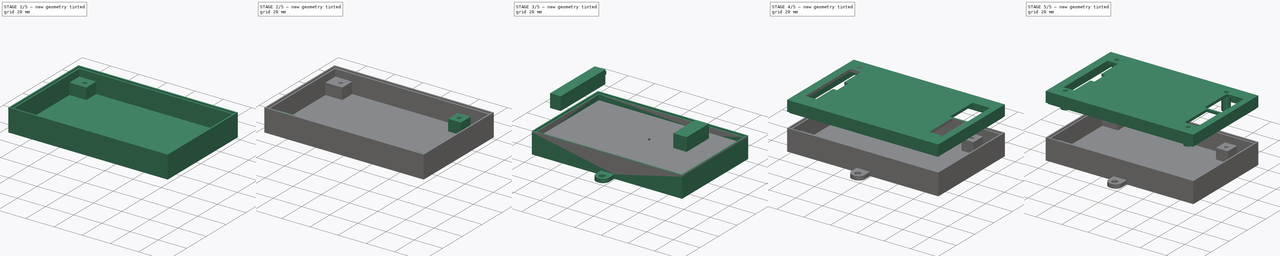
[diagram: build sequence overview — one tinted view per stage of 5, left to right]
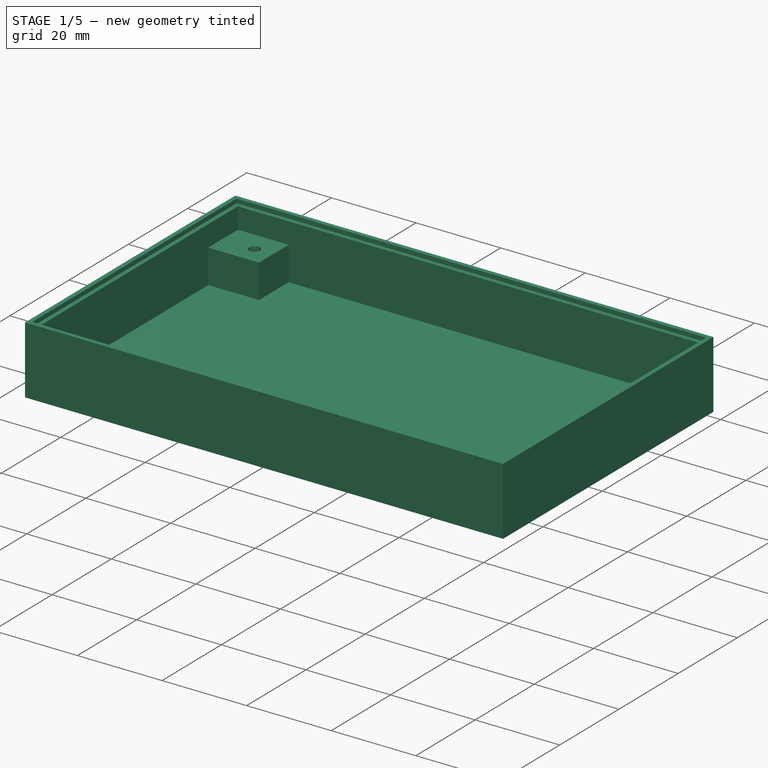
[diagram: stage 1 of 5 — iso view after this stage's code; geometry added in this stage tinted green]
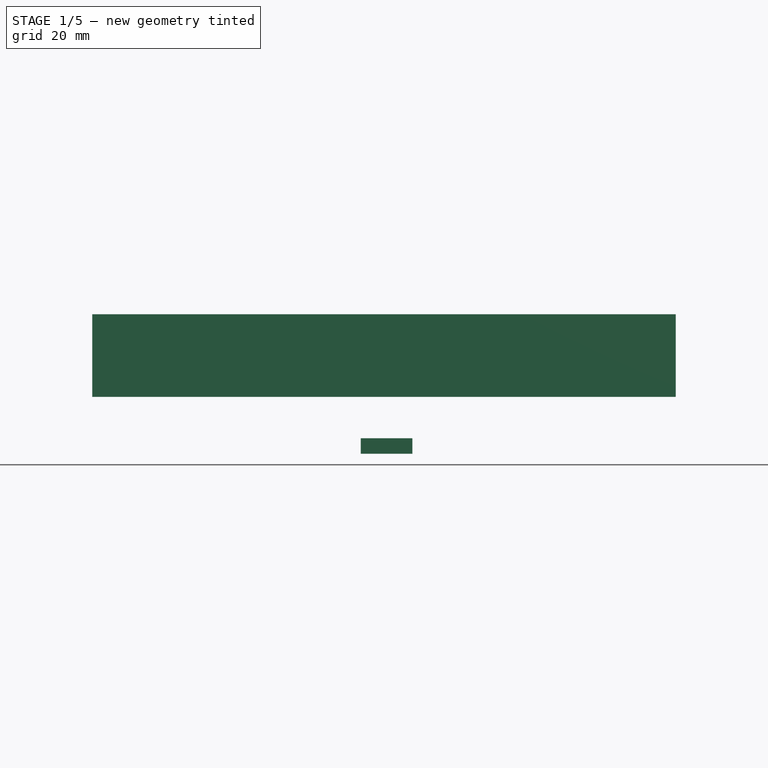
[diagram: stage 1 of 5 — front view after this stage's code; geometry added in this stage tinted green]
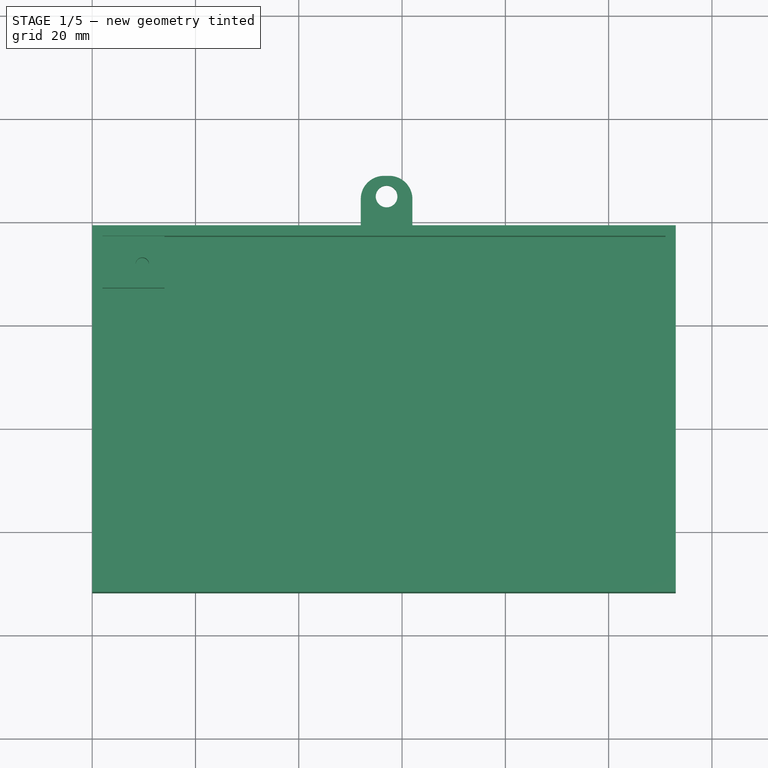
[diagram: stage 1 of 5 — top view after this stage's code; geometry added in this stage tinted green]
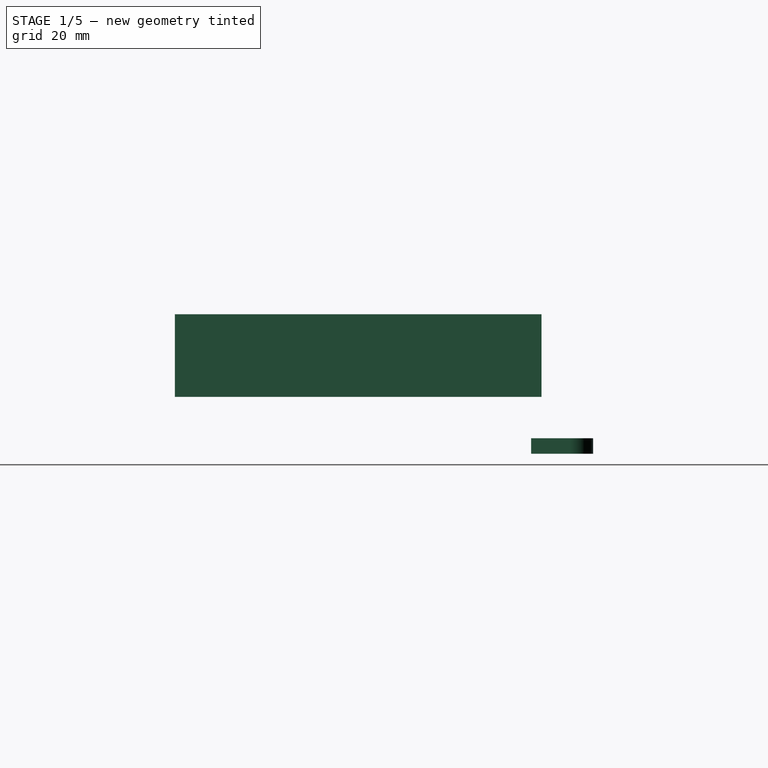
[diagram: stage 1 of 5 — right view after this stage's code; geometry added in this stage tinted green]
FCSTD DOCUMENT  (FreeCAD 0.20R29603 (Git))
Label: Flying_ADC_BMS
License: All rights reserved
LicenseURL: http://en.wikipedia.org/wiki/All_rights_reserved
objects: App::Link×116, Part::Feature×24, Part::Box×19, Part::Cut×19, Part::MultiFuse×12, Part::Cylinder×10, App::Part×5, Part::FeaturePython×4, Part::Fillet×4, PartDesign::CoordinateSystem×1, Sketcher::SketchObject×1
note: 94 computed .brp shape members not serialized (recipe doc carries the construction recipe); baked Part::Feature solids carry a one-line shape summary decoded from their .brp

FEATURE [PartDesign::CoordinateSystem] Local_CS_b294
  AttacherType = Attacher::AttachEngine3D
  MapMode = 2
  Support = -> [X_Axis001]
FEATURE [Part::Feature] Pcb_b294
  Placement = pos=(-100.965,74.295,0) rot=(0,0,1;0rad)
  shape: bbox 105.4 x 64.77 x 1.6 mm, 57 faces (baked)
FEATURE [Sketcher::SketchObject] PCB_Sketch_b294
  FullyConstrained = false
  sketch-geometry (5):
    g0: LineSegment StartX=105.41 StartY=-64.77 StartZ=0 EndX=0 EndY=-64.77 EndZ=0
    g1: LineSegment StartX=88.265 StartY=0 StartZ=0 EndX=105.41 EndY=0 EndZ=0
    g2: LineSegment StartX=105.41 StartY=0 StartZ=0 EndX=105.41 EndY=-64.77 EndZ=0
    g3: LineSegment StartX=0 StartY=-64.77 StartZ=0 EndX=0 EndY=0 EndZ=0
    g4: LineSegment StartX=0 StartY=0 StartZ=0 EndX=88.265 EndY=0 EndZ=0
  constraints (5):
    c: Coincident(g0,g3)
    c: Coincident(g3,g4)
    c: Coincident(g1,g4)
    c: Coincident(g0,g2)
    c: Coincident(g1,g2)
FEATURE [App::Part] Board_Geoms_b294
  Group = -> [Pcb_b294,PCB_Sketch_b294]
  Origin = -> Origin
FEATURE [Part::Feature] Shape  label="Q14_SOT_23_87ded7d59d4a"
  Placement = pos=(42.85,-56.515,0) rot=(0,0,1;1.5708rad)
  shape: bbox 3 x 2.5 x 1.2 mm, 76 faces (baked)
FEATURE [Part::Feature] Shape001  label="R14_R_0603_1608Metric_3bfc73a55aef"
  Placement = pos=(19.8,-41.91,0) rot=(0,0,-1;1.5708rad)
  shape: bbox 0.8 x 1.6 x 0.45 mm, 26 faces (baked)
FEATURE [App::Link] R14_R_0603_1608Metric_3bfc73a55aef_ln_  label="R15_R_0603_1608Metric_4b52dd6b9e2e"
  LinkPlacement = pos=(19.8,-57.15,0) rot=(0,0,-1;1.5708rad)
  LinkedObject = -> Shape001
  Placement = pos=(19.8,-57.15,0) rot=(0,0,-1;1.5708rad)
FEATURE [App::Link] Q14_SOT_23_87ded7d59d4a_ln_  label="Q45_SOT_23_58456367ed52"
  LinkPlacement = pos=(16.625,-34.29,0) rot=(0,0,1;0rad)
  LinkedObject = -> Shape
  Placement = pos=(16.625,-34.29,0) rot=(0,0,1;0rad)
FEATURE [Part::Feature] Shape002  label="R22_R_0805_2012Metric_596e45dfbf1c"
  Placement = pos=(12.7,-41.656,0) rot=(0,0,1;3.14159rad)
  shape: bbox 2 x 1.2 x 0.45 mm, 26 faces (baked)
FEATURE [Part::Feature] Shape003  label="RN3_R_Array_Concave_4x0603_c5f54f47414b"
  Placement = pos=(92.075,-38.1,0) rot=(0,0,1;3.14159rad)
  shape: bbox 1.6 x 3.2 x 0.6 mm, 140 faces (baked)
FEATURE [Part::Feature] Shape004  label="U27_SOP_4_38x41mm_P254mm_5cef88676b32"
  Placement = pos=(32.512,-60.96,0) rot=(0,0,1;3.14159rad)
  shape: bbox 6.096 x 4.089 x 2.1 mm, 96 faces (baked)
FEATURE [App::Link] R22_R_0805_2012Metric_596e45dfbf1c_ln_  label="R29_R_0805_2012Metric_584845d0f0fb"
  LinkPlacement = pos=(12.8035,-38.1,0) rot=(0,0,1;3.14159rad)
  LinkedObject = -> Shape002
  Placement = pos=(12.8035,-38.1,0) rot=(0,0,1;3.14159rad)
FEATURE [App::Link] Q14_SOT_23_87ded7d59d4a_ln_001  label="Q52_SOT_23_b9e3931d80f0"
  LinkPlacement = pos=(23.61,-3.81,0) rot=(0,0,1;0rad)
  LinkedObject = -> Shape
  Placement = pos=(23.61,-3.81,0) rot=(0,0,1;0rad)
FEATURE [App::Link] U27_SOP_4_38x41mm_P254mm_5cef88676b32_ln_  label="U22_SOP_4_38x41mm_P254mm_993d2f4c38a8"
  LinkPlacement = pos=(46.736,-10.668,0) rot=(0,0,1;1.5708rad)
  LinkedObject = -> Shape004
  Placement = pos=(46.736,-10.668,0) rot=(0,0,1;1.5708rad)
FEATURE [App::Link] RN3_R_Array_Concave_4x0603_c5f54f47414b_ln_  label="RN1_R_Array_Concave_4x0603_61877743ea84"
  LinkPlacement = pos=(85.09,-33.655,0) rot=(0,0,-1;1.5708rad)
  LinkedObject = -> Shape003
  Placement = pos=(85.09,-33.655,0) rot=(0,0,-1;1.5708rad)
FEATURE [App::Link] U27_SOP_4_38x41mm_P254mm_5cef88676b32_ln_001  label="U17_SOP_4_38x41mm_P254mm_02df462552cf"
  LinkPlacement = pos=(32.512,-17.526,0) rot=(0,0,1;3.14159rad)
  LinkedObject = -> Shape004
  Placement = pos=(32.512,-17.526,0) rot=(0,0,1;3.14159rad)
FEATURE [App::Link] R14_R_0603_1608Metric_3bfc73a55aef_ln_001  label="R26_R_0603_1608Metric_f1a5ce82388b"
  LinkPlacement = pos=(19.8,-38.1,0) rot=(0,0,1;1.5708rad)
  LinkedObject = -> Shape001
  Placement = pos=(19.8,-38.1,0) rot=(0,0,1;1.5708rad)
FEATURE [App::Link] R14_R_0603_1608Metric_3bfc73a55aef_ln_002  label="R41_R_0603_1608Metric_99ec20c5fd55"
  LinkPlacement = pos=(68.58,-34.544,0) rot=(0,0,1;3.14159rad)
  LinkedObject = -> Shape001
  Placement = pos=(68.58,-34.544,0) rot=(0,0,1;3.14159rad)
FEATURE [App::Link] R22_R_0805_2012Metric_596e45dfbf1c_ln_001  label="R30_R_0805_2012Metric_34a363119726"
  LinkPlacement = pos=(12.8035,-22.86,0) rot=(0,0,1;3.14159rad)
  LinkedObject = -> Shape002
  Placement = pos=(12.8035,-22.86,0) rot=(0,0,1;3.14159rad)
FEATURE [App::Link] U27_SOP_4_38x41mm_P254mm_5cef88676b32_ln_002  label="U18_SOP_4_38x41mm_P254mm_26ce24212a13"
  LinkPlacement = pos=(32.512,-51.308,0) rot=(0,0,1;3.14159rad)
  LinkedObject = -> Shape004
  Placement = pos=(32.512,-51.308,0) rot=(0,0,1;3.14159rad)
FEATURE [Part::Feature] Shape005  label="U6_SOIC_8_39x49mm_P127mm_981808474e07"
  Placement = pos=(67.31,-54.61,0) rot=(0,0,1;3.14159rad)
  shape: bbox 6 x 4.9 x 1.75 mm, 156 faces (baked)
FEATURE [Part::Feature] Shape006  label="J2_Molex_AE_6410_08A_b38d527fb858"
  Placement = pos=(99.06,-34.925,0) rot=(0,0,-1;1.5708rad)
  shape: bbox 5.8 x 20.32 x 15.26 mm, 230 faces (baked)
FEATURE [App::Link] Q14_SOT_23_87ded7d59d4a_ln_002  label="U8_SOT_23_d9b559821d55"
  LinkPlacement = pos=(77.47,-21.8925,0) rot=(0,0,1;1.5708rad)
  LinkedObject = -> Shape
  Placement = pos=(77.47,-21.8925,0) rot=(0,0,1;1.5708rad)
FEATURE [App::Link] Q14_SOT_23_87ded7d59d4a_ln_003  label="Q18_SOT_23_a0c38dcb8430"
  LinkPlacement = pos=(16.625,-41.91,0) rot=(0,0,1;0rad)
  LinkedObject = -> Shape
  Placement = pos=(16.625,-41.91,0) rot=(0,0,1;0rad)
FEATURE [App::Link] Q14_SOT_23_87ded7d59d4a_ln_004  label="Q11_SOT_23_240639e4ae46"
  LinkPlacement = pos=(23.61,-15.24,0) rot=(0,0,1;3.14159rad)
  LinkedObject = -> Shape
  Placement = pos=(23.61,-15.24,0) rot=(0,0,1;3.14159rad)
FEATURE [App::Link] Q14_SOT_23_87ded7d59d4a_ln_005  label="Q25_SOT_23_a9ed133ba882"
  LinkPlacement = pos=(23.61,-11.43,0) rot=(0,0,1;0rad)
  LinkedObject = -> Shape
  Placement = pos=(23.61,-11.43,0) rot=(0,0,1;0rad)
FEATURE [Part::Feature] Part__Feature  label="SOLID"
  shape: bbox 45.64 x 6.6 x 15.11 mm, 380 faces (baked)
FEATURE [App::Part] _719710017  label="J1_1719710017_8cfefce3e6c9"
  Group = -> [Part__Feature]
  Origin = -> Origin008
  Placement = pos=(5.715,-33.04,11.9) rot=(0,0,-1;1.5708rad)
FEATURE [App::Link] R22_R_0805_2012Metric_596e45dfbf1c_ln_002  label="R32_R_0805_2012Metric_f8ffda183189"
  LinkPlacement = pos=(12.7,-34.544,0) rot=(0,0,1;0rad)
  LinkedObject = -> Shape002
  Placement = pos=(12.7,-34.544,0) rot=(0,0,1;0rad)
FEATURE [App::Link] Q14_SOT_23_87ded7d59d4a_ln_006  label="Q19_SOT_23_b6df6d0c2618"
  LinkPlacement = pos=(16.625,-57.15,0) rot=(0,0,1;0rad)
  LinkedObject = -> Shape
  Placement = pos=(16.625,-57.15,0) rot=(0,0,1;0rad)
FEATURE [App::Link] R22_R_0805_2012Metric_596e45dfbf1c_ln_003  label="R31_R_0805_2012Metric_829a913f6852"
  LinkPlacement = pos=(14.8355,-8.636,0) rot=(0,0,1;3.14159rad)
  LinkedObject = -> Shape002
  Placement = pos=(14.8355,-8.636,0) rot=(0,0,1;3.14159rad)
FEATURE [App::Link] R14_R_0603_1608Metric_3bfc73a55aef_ln_003  label="R9_R_0603_1608Metric_1704798cf843"
  LinkPlacement = pos=(67.564,-16.256,0) rot=(0,0,1;1.5708rad)
  LinkedObject = -> Shape001
  Placement = pos=(67.564,-16.256,0) rot=(0,0,1;1.5708rad)
FEATURE [App::Link] Q14_SOT_23_87ded7d59d4a_ln_007  label="Q33_SOT_23_95b5423a421a"
  LinkPlacement = pos=(16.625,-53.34,0) rot=(0,0,1;3.14159rad)
  LinkedObject = -> Shape
  Placement = pos=(16.625,-53.34,0) rot=(0,0,1;3.14159rad)
FEATURE [Part::Feature] Shape007  label="L1_L_1210_3225Metric_4f8d756e5ff9"
  Placement = pos=(78.22,-9.045,0) rot=(0,0,1;1.5708rad)
  shape: bbox 2.5 x 3.2 x 2.5 mm, 28 faces (baked)
FEATURE [Part::Feature] Shape008  label="U2_SOT_23_6_b0798abddf9c"
  Placement = pos=(60.375,-60.325,0) rot=(0,0,1;1.5708rad)
  shape: bbox 2.9 x 2.8 x 1.55 mm, 124 faces (baked)
FEATURE [App::Link] U27_SOP_4_38x41mm_P254mm_5cef88676b32_ln_003  label="U9_SOP_4_38x41mm_P254mm_b9657afebee8"
  LinkPlacement = pos=(32.512,-36.83,0) rot=(0,0,1;3.14159rad)
  LinkedObject = -> Shape004
  Placement = pos=(32.512,-36.83,0) rot=(0,0,1;3.14159rad)
FEATURE [App::Link] R14_R_0603_1608Metric_3bfc73a55aef_ln_004  label="R10_R_0603_1608Metric_c97ce3145c4f"
  LinkPlacement = pos=(13.716,-6.096,0) rot=(0,0,-1;1.5708rad)
  LinkedObject = -> Shape001
  Placement = pos=(13.716,-6.096,0) rot=(0,0,-1;1.5708rad)
FEATURE [App::Link] U6_SOIC_8_39x49mm_P127mm_981808474e07_ln_  label="U1_SOIC_8_39x49mm_P127mm_0c88ad173072"
  LinkPlacement = pos=(54.09,-54.61,0) rot=(0,0,1;0rad)
  LinkedObject = -> Shape005
  Placement = pos=(54.09,-54.61,0) rot=(0,0,1;0rad)
FEATURE [App::Link] R14_R_0603_1608Metric_3bfc73a55aef_ln_005  label="R42_R_0603_1608Metric_6836b7b1ce87"
  LinkPlacement = pos=(19.8,-30.48,0) rot=(0,0,1;1.5708rad)
  LinkedObject = -> Shape001
  Placement = pos=(19.8,-30.48,0) rot=(0,0,1;1.5708rad)
FEATURE [App::Link] Q14_SOT_23_87ded7d59d4a_ln_008  label="Q32_SOT_23_dd4e3953c934"
  LinkPlacement = pos=(16.625,-38.1,0) rot=(0,0,1;3.14159rad)
  LinkedObject = -> Shape
  Placement = pos=(16.625,-38.1,0) rot=(0,0,1;3.14159rad)
FEATURE [App::Link] R14_R_0603_1608Metric_3bfc73a55aef_ln_006  label="R49_R_0603_1608Metric_c8187d3a2ad8"
  LinkPlacement = pos=(19.8,-26.67,0) rot=(0,0,-1;1.5708rad)
  LinkedObject = -> Shape001
  Placement = pos=(19.8,-26.67,0) rot=(0,0,-1;1.5708rad)
FEATURE [App::Link] R14_R_0603_1608Metric_3bfc73a55aef_ln_007  label="R55_R_0603_1608Metric_9313882e11ff"
  LinkPlacement = pos=(19.8,-22.86,0) rot=(0,0,1;1.5708rad)
  LinkedObject = -> Shape001
  Placement = pos=(19.8,-22.86,0) rot=(0,0,1;1.5708rad)
FEATURE [App::Link] Q14_SOT_23_87ded7d59d4a_ln_009  label="Q27_SOT_23_8a2031d38e84"
  LinkPlacement = pos=(23.61,-57.15,0) rot=(0,0,1;0rad)
  LinkedObject = -> Shape
  Placement = pos=(23.61,-57.15,0) rot=(0,0,1;0rad)
FEATURE [App::Link] Q14_SOT_23_87ded7d59d4a_ln_010  label="Q39_SOT_23_b7664dc2cd6c"
  LinkPlacement = pos=(23.61,-7.62,0) rot=(0,0,1;3.14159rad)
  LinkedObject = -> Shape
  Placement = pos=(23.61,-7.62,0) rot=(0,0,1;3.14159rad)
FEATURE [App::Link] R22_R_0805_2012Metric_596e45dfbf1c_ln_004  label="R40_R_0805_2012Metric_25b7a25cd1ac"
  LinkPlacement = pos=(12.5965,-49.784,0) rot=(0,0,1;3.14159rad)
  LinkedObject = -> Shape002
  Placement = pos=(12.5965,-49.784,0) rot=(0,0,1;3.14159rad)
FEATURE [App::Link] RN3_R_Array_Concave_4x0603_c5f54f47414b_ln_001  label="RN2_R_Array_Concave_4x0603_501211ddf4bc"
  LinkPlacement = pos=(91.44,-33.655,0) rot=(0,0,1;1.5708rad)
  LinkedObject = -> Shape003
  Placement = pos=(91.44,-33.655,0) rot=(0,0,1;1.5708rad)
FEATURE [App::Link] R14_R_0603_1608Metric_3bfc73a55aef_ln_008  label="R2_R_0603_1608Metric_6fdbd50a3c8c"
  LinkPlacement = pos=(13.462,-60.96,0) rot=(0,0,-1;1.5708rad)
  LinkedObject = -> Shape001
  Placement = pos=(13.462,-60.96,0) rot=(0,0,-1;1.5708rad)
FEATURE [App::Link] R14_R_0603_1608Metric_3bfc73a55aef_ln_009  label="R5_R_0603_1608Metric_855fd2e8c185"
  LinkPlacement = pos=(55.36,-60.325,0) rot=(0,0,1;1.5708rad)
  LinkedObject = -> Shape001
  Placement = pos=(55.36,-60.325,0) rot=(0,0,1;1.5708rad)
FEATURE [Part::Feature] Shape009  label="C5_C_0805_2012Metric_f418098cded9"
  Placement = pos=(80.7075,-5.08,0) rot=(0,0,1;0rad)
  shape: bbox 2 x 1.25 x 1.25 mm, 28 faces (baked)
FEATURE [App::Link] Q14_SOT_23_87ded7d59d4a_ln_011  label="Q74_SOT_23_f4e5740df366"
  LinkPlacement = pos=(23.61,-26.67,0) rot=(0,0,1;0rad)
  LinkedObject = -> Shape
  Placement = pos=(23.61,-26.67,0) rot=(0,0,1;0rad)
FEATURE [App::Link] Q14_SOT_23_87ded7d59d4a_ln_012  label="Q1_SOT_23_2b000304612a"
  LinkPlacement = pos=(16.764,-60.96,0) rot=(0,0,1;0rad)
  LinkedObject = -> Shape
  Placement = pos=(16.764,-60.96,0) rot=(0,0,1;0rad)
FEATURE [Part::Feature] Shape010  label="C7_C_0603_1608Metric_eb9e8be2ffff"
  Placement = pos=(57.265,-60.325,0) rot=(0,0,1;1.5708rad)
  shape: bbox 0.8 x 1.6 x 0.8 mm, 28 faces (baked)
FEATURE [App::Link] Q14_SOT_23_87ded7d59d4a_ln_013  label="Q40_SOT_23_3f9f903eff36"
  LinkPlacement = pos=(23.61,-38.1,0) rot=(0,0,1;3.14159rad)
  LinkedObject = -> Shape
  Placement = pos=(23.61,-38.1,0) rot=(0,0,1;3.14159rad)
FEATURE [App::Link] C7_C_0603_1608Metric_eb9e8be2ffff_ln_  label="C14_C_0603_1608Metric_780d5713e790"
  LinkPlacement = pos=(82.615,-26.175,0) rot=(0,0,1;1.5708rad)
  LinkedObject = -> Shape010
  Placement = pos=(82.615,-26.175,0) rot=(0,0,1;1.5708rad)
FEATURE [App::Link] U27_SOP_4_38x41mm_P254mm_5cef88676b32_ln_004  label="U20_SOP_4_38x41mm_P254mm_0a4a4702aa73"
  LinkPlacement = pos=(37.084,-10.668,0) rot=(0,0,1;1.5708rad)
  LinkedObject = -> Shape004
  Placement = pos=(37.084,-10.668,0) rot=(0,0,1;1.5708rad)
FEATURE [App::Link] R14_R_0603_1608Metric_3bfc73a55aef_ln_010  label="R59_R_0603_1608Metric_152f840def9c"
  LinkPlacement = pos=(19.8,-19.24,0) rot=(0,0,-1;1.5708rad)
  LinkedObject = -> Shape001
  Placement = pos=(19.8,-19.24,0) rot=(0,0,-1;1.5708rad)
FEATURE [Part::Feature] Shape011  label="J5_PinHeader_1x04_P254mm_Vertical_e13bca67da23"
  Placement = pos=(92.825,-60.96,0) rot=(0,0,-1;1.5708rad)
  shape: bbox 10.16 x 2.54 x 11.54 mm, 100 faces (baked)
FEATURE [Part::Feature] Shape012  label="D10_D_SMA_628cb4ce9e22"
  Placement = pos=(54.61,-46.99,0) rot=(0,0,1;1.5708rad)
  shape: bbox 2.7 x 5 x 2.22 mm, 41 faces (baked)
FEATURE [App::Link] R14_R_0603_1608Metric_3bfc73a55aef_ln_011  label="R6_R_0603_1608Metric_f00d5f9ce2e4"
  LinkPlacement = pos=(19.8,-15.24,0) rot=(0,0,1;1.5708rad)
  LinkedObject = -> Shape001
  Placement = pos=(19.8,-15.24,0) rot=(0,0,1;1.5708rad)
FEATURE [Part::Feature] Shape013  label="U15_SOT_353_SC_70_5_34e62e0b32b6"
  Placement = pos=(61.075,-53.34,0) rot=(0,0,-1;1.5708rad)
  shape: bbox 2 x 2 x 1.05 mm, 104 faces (baked)
FEATURE [Part::Feature] Shape014  label="U14_LQFP_48_7x7mm_P05mm_7ef63f9fbcc2"
  Placement = pos=(82.665,-48.895,0) rot=(0,0,-1;1.5708rad)
  shape: bbox 9 x 9 x 1.5 mm, 764 faces (baked)
FEATURE [App::Link] R22_R_0805_2012Metric_596e45dfbf1c_ln_005  label="R23_R_0805_2012Metric_ab6625eec215"
  LinkPlacement = pos=(42.85,-52.705,0) rot=(0,0,1;1.5708rad)
  LinkedObject = -> Shape002
  Placement = pos=(42.85,-52.705,0) rot=(0,0,1;1.5708rad)
FEATURE [App::Link] Q14_SOT_23_87ded7d59d4a_ln_014  label="Q41_SOT_23_da091fa5b6e3"
  LinkPlacement = pos=(23.61,-53.34,0) rot=(0,0,1;3.14159rad)
  LinkedObject = -> Shape
  Placement = pos=(23.61,-53.34,0) rot=(0,0,1;3.14159rad)
FEATURE [App::Link] R22_R_0805_2012Metric_596e45dfbf1c_ln_006  label="R20_R_0805_2012Metric_a277a8efd8ad"
  LinkPlacement = pos=(12.7,-11.684,0) rot=(0,0,1;0rad)
  LinkedObject = -> Shape002
  Placement = pos=(12.7,-11.684,0) rot=(0,0,1;0rad)
FEATURE [Part::Feature] Shape015  label="F1_Fuse_1206_3216Metric_5dfb2dddf364"
  Placement = pos=(47.625,-60.96,0) rot=(0,0,1;1.5708rad)
  shape: bbox 1.6 x 3.2 x 0.55 mm, 26 faces (baked)
FEATURE [App::Link] Q14_SOT_23_87ded7d59d4a_ln_015  label="Q81_SOT_23_2ddc243e09dd"
  LinkPlacement = pos=(23.61,-22.86,0) rot=(0,0,1;3.14159rad)
  LinkedObject = -> Shape
  Placement = pos=(23.61,-22.86,0) rot=(0,0,1;3.14159rad)
FEATURE [App::Link] Q14_SOT_23_87ded7d59d4a_ln_016  label="Q26_SOT_23_e62fbb7637a6"
  LinkPlacement = pos=(23.61,-41.91,0) rot=(0,0,1;0rad)
  LinkedObject = -> Shape
  Placement = pos=(23.61,-41.91,0) rot=(0,0,1;0rad)
FEATURE [App::Link] C5_C_0805_2012Metric_f418098cded9_ln_  label="C4_C_0805_2012Metric_65ff5861a46b"
  LinkPlacement = pos=(81.395,-9.045,0) rot=(0,0,1;1.5708rad)
  LinkedObject = -> Shape009
  Placement = pos=(81.395,-9.045,0) rot=(0,0,1;1.5708rad)
FEATURE [App::Link] Q14_SOT_23_87ded7d59d4a_ln_017  label="Q20_SOT_23_350bca6d5476"
  LinkPlacement = pos=(47.74,-56.515,0) rot=(0,0,1;1.5708rad)
  LinkedObject = -> Shape
  Placement = pos=(47.74,-56.515,0) rot=(0,0,1;1.5708rad)
FEATURE [App::Link] C7_C_0603_1608Metric_eb9e8be2ffff_ln_001  label="C11_C_0603_1608Metric_f357814ce3c0"
  LinkPlacement = pos=(75.54,-52.705,0) rot=(0,0,1;3.14159rad)
  LinkedObject = -> Shape010
  Placement = pos=(75.54,-52.705,0) rot=(0,0,1;3.14159rad)
FEATURE [App::Link] U27_SOP_4_38x41mm_P254mm_5cef88676b32_ln_005  label="U28_SOP_4_38x41mm_P254mm_edb5214044a4"
  LinkPlacement = pos=(32.512,-56.134,0) rot=(0,0,1;3.14159rad)
  LinkedObject = -> Shape004
  Placement = pos=(32.512,-56.134,0) rot=(0,0,1;3.14159rad)
FEATURE [App::Link] R22_R_0805_2012Metric_596e45dfbf1c_ln_007  label="R38_R_0805_2012Metric_7c1e2b37ba63"
  LinkPlacement = pos=(12.8035,-18.796,0) rot=(0,0,1;0rad)
  LinkedObject = -> Shape002
  Placement = pos=(12.8035,-18.796,0) rot=(0,0,1;0rad)
FEATURE [App::Link] C5_C_0805_2012Metric_f418098cded9_ln_001  label="C3_C_0805_2012Metric_82d2481929ae"
  LinkPlacement = pos=(58.215,-45.405,0) rot=(0,0,-1;1.5708rad)
  LinkedObject = -> Shape009
  Placement = pos=(58.215,-45.405,0) rot=(0,0,-1;1.5708rad)
FEATURE [App::Link] Q14_SOT_23_87ded7d59d4a_ln_018  label="Q77_SOT_23_768ba88ab80f"
  LinkPlacement = pos=(16.625,-22.86,0) rot=(0,0,1;3.14159rad)
  LinkedObject = -> Shape
  Placement = pos=(16.625,-22.86,0) rot=(0,0,1;3.14159rad)
FEATURE [App::Link] R22_R_0805_2012Metric_596e45dfbf1c_ln_008  label="R11_R_0805_2012Metric_38dc6efa7309"
  LinkPlacement = pos=(12.8035,-56.896,0) rot=(0,0,1;3.14159rad)
  LinkedObject = -> Shape002
  Placement = pos=(12.8035,-56.896,0) rot=(0,0,1;3.14159rad)
FEATURE [App::Link] R14_R_0603_1608Metric_3bfc73a55aef_ln_012  label="R3_R_0603_1608Metric_46f3160cb43d"
  LinkPlacement = pos=(52.185,-62.23,0) rot=(0,0,1;3.14159rad)
  LinkedObject = -> Shape001
  Placement = pos=(52.185,-62.23,0) rot=(0,0,1;3.14159rad)
FEATURE [App::Link] R22_R_0805_2012Metric_596e45dfbf1c_ln_009  label="R39_R_0805_2012Metric_84cbfa8435ea"
  LinkPlacement = pos=(11.684,-6.096,0) rot=(0,0,-1;1.5708rad)
  LinkedObject = -> Shape002
  Placement = pos=(11.684,-6.096,0) rot=(0,0,-1;1.5708rad)
FEATURE [App::Link] R14_R_0603_1608Metric_3bfc73a55aef_ln_013  label="R16_R_0603_1608Metric_30d7bf0cf08a"
  LinkPlacement = pos=(78.855,-17.6925,0) rot=(0,0,1;3.14159rad)
  LinkedObject = -> Shape001
  Placement = pos=(78.855,-17.6925,0) rot=(0,0,1;3.14159rad)
FEATURE [App::Link] Q14_SOT_23_87ded7d59d4a_ln_019  label="Q3_SOT_23_62722d2e6eb4"
  LinkPlacement = pos=(16.625,-45.72,0) rot=(0,0,1;3.14159rad)
  LinkedObject = -> Shape
  Placement = pos=(16.625,-45.72,0) rot=(0,0,1;3.14159rad)
FEATURE [App::Link] R14_R_0603_1608Metric_3bfc73a55aef_ln_014  label="R25_R_0603_1608Metric_8bea1215faef"
  LinkPlacement = pos=(19.8,-7.62,0) rot=(0,0,1;1.5708rad)
  LinkedObject = -> Shape001
  Placement = pos=(19.8,-7.62,0) rot=(0,0,1;1.5708rad)
FEATURE [App::Link] R22_R_0805_2012Metric_596e45dfbf1c_ln_010  label="R17_R_0805_2012Metric_e19a67fd7c35"
  LinkPlacement = pos=(12.8035,-45.72,0) rot=(0,0,1;3.14159rad)
  LinkedObject = -> Shape002
  Placement = pos=(12.8035,-45.72,0) rot=(0,0,1;3.14159rad)
FEATURE [App::Link] R22_R_0805_2012Metric_596e45dfbf1c_ln_011  label="R21_R_0805_2012Metric_eba28529559e"
  LinkPlacement = pos=(12.7,-26.924,0) rot=(0,0,1;0rad)
  LinkedObject = -> Shape002
  Placement = pos=(12.7,-26.924,0) rot=(0,0,1;0rad)
FEATURE [App::Link] Q14_SOT_23_87ded7d59d4a_ln_020  label="Q10_SOT_23_a99352631792"
  LinkPlacement = pos=(42.85,-48.5662,0) rot=(0,0,-1;1.5708rad)
  LinkedObject = -> Shape
  Placement = pos=(42.85,-48.5662,0) rot=(0,0,-1;1.5708rad)
FEATURE [App::Link] Q14_SOT_23_87ded7d59d4a_ln_021  label="Q63_SOT_23_df1578a0116b"
  LinkPlacement = pos=(23.61,-30.48,0) rot=(0,0,1;3.14159rad)
  LinkedObject = -> Shape
  Placement = pos=(23.61,-30.48,0) rot=(0,0,1;3.14159rad)
FEATURE [App::Link] R14_R_0603_1608Metric_3bfc73a55aef_ln_015  label="R12_R_0603_1608Metric_cc97e9e5fdbc"
  LinkPlacement = pos=(81.9775,-17.6925,0) rot=(0,0,1;0rad)
  LinkedObject = -> Shape001
  Placement = pos=(81.9775,-17.6925,0) rot=(0,0,1;0rad)
FEATURE [App::Link] Q14_SOT_23_87ded7d59d4a_ln_022  label="Q68_SOT_23_93b732838577"
  LinkPlacement = pos=(16.625,-26.67,0) rot=(0,0,1;0rad)
  LinkedObject = -> Shape
  Placement = pos=(16.625,-26.67,0) rot=(0,0,1;0rad)
FEATURE [App::Link] R22_R_0805_2012Metric_596e45dfbf1c_ln_012  label="R24_R_0805_2012Metric_f52f1b7422b4"
  LinkPlacement = pos=(12.7,-53.34,0) rot=(0,0,1;3.14159rad)
  LinkedObject = -> Shape002
  Placement = pos=(12.7,-53.34,0) rot=(0,0,1;3.14159rad)
FEATURE [App::Link] C7_C_0603_1608Metric_eb9e8be2ffff_ln_002  label="C16_C_0603_1608Metric_5a38d5d8f348"
  LinkPlacement = pos=(82.805,-42.545,0) rot=(0,0,1;3.14159rad)
  LinkedObject = -> Shape010
  Placement = pos=(82.805,-42.545,0) rot=(0,0,1;3.14159rad)
FEATURE [App::Link] R14_R_0603_1608Metric_3bfc73a55aef_ln_016  label="R27_R_0603_1608Metric_208e400e443f"
  LinkPlacement = pos=(19.8,-53.34,0) rot=(0,0,1;1.5708rad)
  LinkedObject = -> Shape001
  Placement = pos=(19.8,-53.34,0) rot=(0,0,1;1.5708rad)
FEATURE [App::Link] C7_C_0603_1608Metric_eb9e8be2ffff_ln_003  label="C13_C_0603_1608Metric_bc9ccc7c96a2"
  LinkPlacement = pos=(88.38,-53.34,0) rot=(0,0,1;0rad)
  LinkedObject = -> Shape010
  Placement = pos=(88.38,-53.34,0) rot=(0,0,1;0rad)
FEATURE [App::Link] R14_R_0603_1608Metric_3bfc73a55aef_ln_017  label="R36_R_0603_1608Metric_675198c5b3d1"
  LinkPlacement = pos=(88.9,-17.335,0) rot=(0,0,-1;1.5708rad)
  LinkedObject = -> Shape001
  Placement = pos=(88.9,-17.335,0) rot=(0,0,-1;1.5708rad)
FEATURE [App::Link] C7_C_0603_1608Metric_eb9e8be2ffff_ln_004  label="C1_C_0603_1608Metric_fd99c9ce7d75"
  LinkPlacement = pos=(87.884,-33.528,0) rot=(0,0,1;1.5708rad)
  LinkedObject = -> Shape010
  Placement = pos=(87.884,-33.528,0) rot=(0,0,1;1.5708rad)
FEATURE [App::Link] R14_R_0603_1608Metric_3bfc73a55aef_ln_018  label="R34_R_0603_1608Metric_339109d25f16"
  LinkPlacement = pos=(19.8,-34.29,0) rot=(0,0,-1;1.5708rad)
  LinkedObject = -> Shape001
  Placement = pos=(19.8,-34.29,0) rot=(0,0,-1;1.5708rad)
FEATURE [Part::Feature] Shape016  label="U4_SOIC_16_39x99mm_P127mm_1f1714147c6b"
  Placement = pos=(51.816,-33.274,0) rot=(0,0,1;3.14159rad)
  shape: bbox 6 x 9.9 x 1.75 mm, 276 faces (baked)
FEATURE [App::Link] R14_R_0603_1608Metric_3bfc73a55aef_ln_019  label="R4_R_0603_1608Metric_419b3b5e10fb"
  LinkPlacement = pos=(52.185,-60.325,0) rot=(0,0,1;0rad)
  LinkedObject = -> Shape001
  Placement = pos=(52.185,-60.325,0) rot=(0,0,1;0rad)
FEATURE [App::Link] Q14_SOT_23_87ded7d59d4a_ln_023  label="Q5_SOT_23_080691042b2f"
  LinkPlacement = pos=(23.622,-60.96,0) rot=(0,0,1;0rad)
  LinkedObject = -> Shape
  Placement = pos=(23.622,-60.96,0) rot=(0,0,1;0rad)
FEATURE [App::Link] Q14_SOT_23_87ded7d59d4a_ln_024  label="Q13_SOT_23_ec828ea296a2"
  LinkPlacement = pos=(23.61,-45.72,0) rot=(0,0,1;3.14159rad)
  LinkedObject = -> Shape
  Placement = pos=(23.61,-45.72,0) rot=(0,0,1;3.14159rad)
FEATURE [App::Link] Q14_SOT_23_87ded7d59d4a_ln_025  label="Q17_SOT_23_7bf56142e052"
  LinkPlacement = pos=(16.625,-11.43,0) rot=(0,0,1;0rad)
  LinkedObject = -> Shape
  Placement = pos=(16.625,-11.43,0) rot=(0,0,1;0rad)
FEATURE [Part::Feature] Shape017  label="PS1_Converter_DCDC_muRata_CRE1xxxxxx3C_THT_27c79fee6e5f[2]"
  Placement = pos=(70.3975,-44.5125,0) rot=(0,0,-1;1.5708rad)
  shape: bbox 11.62 x 6.195 x 11.72 mm, 30 faces (baked)
FEATURE [App::Link] Q14_SOT_23_87ded7d59d4a_ln_026  label="Q15_SOT_23_3d26f3195ed7"
  LinkPlacement = pos=(47.74,-48.5712,0) rot=(0,0,-1;1.5708rad)
  LinkedObject = -> Shape
  Placement = pos=(47.74,-48.5712,0) rot=(0,0,-1;1.5708rad)
FEATURE [App::Link] R14_R_0603_1608Metric_3bfc73a55aef_ln_020  label="R46_R_0603_1608Metric_1e5da0bf9438"
  LinkPlacement = pos=(92.71,-16.51,0) rot=(0,0,1;0rad)
  LinkedObject = -> Shape001
  Placement = pos=(92.71,-16.51,0) rot=(0,0,1;0rad)
FEATURE [App::Link] U27_SOP_4_38x41mm_P254mm_5cef88676b32_ln_006  label="U26_SOP_4_38x41mm_P254mm_7f3804323463"
  LinkPlacement = pos=(66.04,-10.668,0) rot=(0,0,1;1.5708rad)
  LinkedObject = -> Shape004
  Placement = pos=(66.04,-10.668,0) rot=(0,0,1;1.5708rad)
FEATURE [App::Link] R14_R_0603_1608Metric_3bfc73a55aef_ln_021  label="R8_R_0603_1608Metric_70be93d8b42a"
  LinkPlacement = pos=(60.44,-57.15,0) rot=(0,0,1;0rad)
  LinkedObject = -> Shape001
  Placement = pos=(60.44,-57.15,0) rot=(0,0,1;0rad)
FEATURE [App::Link] U27_SOP_4_38x41mm_P254mm_5cef88676b32_ln_007  label="U3_SOP_4_38x41mm_P254mm_d449343ad165"
  LinkPlacement = pos=(32.512,-41.656,0) rot=(0,0,1;3.14159rad)
  LinkedObject = -> Shape004
  Placement = pos=(32.512,-41.656,0) rot=(0,0,1;3.14159rad)
FEATURE [Part::Feature] Shape018  label="J3_MCV_01x06_G_3_81mm_6525aa7bb5dd"
  Placement = pos=(98.54,-8.9075,0) rot=(0,0,-1;1.5708rad)
  shape: bbox 7.55 x 24.25 x 12.6 mm, 208 faces (baked)
FEATURE [App::Link] R14_R_0603_1608Metric_3bfc73a55aef_ln_022  label="R1_R_0603_1608Metric_ca0c37ab1a75"
  LinkPlacement = pos=(19.812,-60.96,0) rot=(0,0,-1;1.5708rad)
  LinkedObject = -> Shape001
  Placement = pos=(19.812,-60.96,0) rot=(0,0,-1;1.5708rad)
FEATURE [Part::Feature] Shape019  label="D8_D_0805_f81e565784b3"
  Placement = pos=(72.136,-34.544,0) rot=(0,0,1;3.14159rad)
  shape: bbox 2 x 1.27 x 0.8 mm, 39 faces (baked)
FEATURE [App::Link] Q14_SOT_23_87ded7d59d4a_ln_027  label="Q83_SOT_23_3eff67d513ce"
  LinkPlacement = pos=(16.625,-19.05,0) rot=(0,0,1;0rad)
  LinkedObject = -> Shape
  Placement = pos=(16.625,-19.05,0) rot=(0,0,1;0rad)
FEATURE [App::Link] C7_C_0603_1608Metric_eb9e8be2ffff_ln_005  label="C2_C_0603_1608Metric_77a7a16ff4e5"
  LinkPlacement = pos=(77.5325,-13.5025,0) rot=(0,0,1;1.5708rad)
  LinkedObject = -> Shape010
  Placement = pos=(77.5325,-13.5025,0) rot=(0,0,1;1.5708rad)
FEATURE [App::Link] C7_C_0603_1608Metric_eb9e8be2ffff_ln_006  label="C15_C_0603_1608Metric_8e226be5f054"
  LinkPlacement = pos=(77.585,-41.91,0) rot=(0,0,1;0rad)
  LinkedObject = -> Shape010
  Placement = pos=(77.585,-41.91,0) rot=(0,0,1;0rad)
FEATURE [App::Link] U27_SOP_4_38x41mm_P254mm_5cef88676b32_ln_008  label="U13_SOP_4_38x41mm_P254mm_98a9de913027"
  LinkPlacement = pos=(32.512,-22.352,0) rot=(0,0,1;3.14159rad)
  LinkedObject = -> Shape004
  Placement = pos=(32.512,-22.352,0) rot=(0,0,1;3.14159rad)
FEATURE [App::Link] U27_SOP_4_38x41mm_P254mm_5cef88676b32_ln_009  label="U24_SOP_4_38x41mm_P254mm_d7840aabbd2c"
  LinkPlacement = pos=(56.388,-10.668,0) rot=(0,0,1;1.5708rad)
  LinkedObject = -> Shape004
  Placement = pos=(56.388,-10.668,0) rot=(0,0,1;1.5708rad)
FEATURE [App::Link] U6_SOIC_8_39x49mm_P127mm_981808474e07_ln_001  label="U7_SOIC_8_39x49mm_P127mm_6895d1476f2f"
  LinkPlacement = pos=(67.31,-60.325,0) rot=(0,0,1;0rad)
  LinkedObject = -> Shape005
  Placement = pos=(67.31,-60.325,0) rot=(0,0,1;0rad)
FEATURE [App::Link] U27_SOP_4_38x41mm_P254mm_5cef88676b32_ln_010  label="U21_SOP_4_38x41mm_P254mm_6212bcc87e5f"
  LinkPlacement = pos=(41.91,-10.668,0) rot=(0,0,1;1.5708rad)
  LinkedObject = -> Shape004
  Placement = pos=(41.91,-10.668,0) rot=(0,0,1;1.5708rad)
FEATURE [App::Link] U6_SOIC_8_39x49mm_P127mm_981808474e07_ln_002  label="U16_SOIC_8_39x49mm_P127mm_f1adfc9494e4"
  LinkPlacement = pos=(87.695,-26.035,0) rot=(0,0,1;0rad)
  LinkedObject = -> Shape005
  Placement = pos=(87.695,-26.035,0) rot=(0,0,1;0rad)
FEATURE [App::Link] R14_R_0603_1608Metric_3bfc73a55aef_ln_023  label="R33_R_0603_1608Metric_4bca0c2de203"
  LinkPlacement = pos=(19.8,-3.81,0) rot=(0,0,-1;1.5708rad)
  LinkedObject = -> Shape001
  Placement = pos=(19.8,-3.81,0) rot=(0,0,-1;1.5708rad)
FEATURE [App::Link] Q14_SOT_23_87ded7d59d4a_ln_028  label="Q87_SOT_23_f3fc44a33a2b"
  LinkPlacement = pos=(23.61,-19.05,0) rot=(0,0,1;0rad)
  LinkedObject = -> Shape
  Placement = pos=(23.61,-19.05,0) rot=(0,0,1;0rad)
FEATURE [App::Link] R22_R_0805_2012Metric_596e45dfbf1c_ln_013  label="R18_R_0805_2012Metric_877bb3cbe7ca"
  LinkPlacement = pos=(12.8035,-30.48,0) rot=(0,0,1;3.14159rad)
  LinkedObject = -> Shape002
  Placement = pos=(12.8035,-30.48,0) rot=(0,0,1;3.14159rad)
FEATURE [App::Link] U4_SOIC_16_39x99mm_P127mm_1f1714147c6b_ln_  label="U5_SOIC_16_39x99mm_P127mm_edae44ed0836"
  LinkPlacement = pos=(51.816,-22.606,0) rot=(0,0,1;3.14159rad)
  LinkedObject = -> Shape016
  Placement = pos=(51.816,-22.606,0) rot=(0,0,1;3.14159rad)
FEATURE [App::Link] R14_R_0603_1608Metric_3bfc73a55aef_ln_024  label="R35_R_0603_1608Metric_e4434aa48767"
  LinkPlacement = pos=(19.8,-49.53,0) rot=(0,0,-1;1.5708rad)
  LinkedObject = -> Shape001
  Placement = pos=(19.8,-49.53,0) rot=(0,0,-1;1.5708rad)
FEATURE [App::Link] U2_SOT_23_6_b0798abddf9c_ln_  label="U11_SOT_23_6_65561228aac7"
  LinkPlacement = pos=(80.44,-13.8825,0) rot=(0,0,1;1.5708rad)
  LinkedObject = -> Shape008
  Placement = pos=(80.44,-13.8825,0) rot=(0,0,1;1.5708rad)
FEATURE [App::Link] U27_SOP_4_38x41mm_P254mm_5cef88676b32_ln_011  label="U12_SOP_4_38x41mm_P254mm_6aa8845619e9"
  LinkPlacement = pos=(32.512,-27.178,0) rot=(0,0,1;3.14159rad)
  LinkedObject = -> Shape004
  Placement = pos=(32.512,-27.178,0) rot=(0,0,1;3.14159rad)
FEATURE [App::Link] Q14_SOT_23_87ded7d59d4a_ln_029  label="Q53_SOT_23_d9dd2b5dd09f"
  LinkPlacement = pos=(23.61,-34.29,0) rot=(0,0,1;0rad)
  LinkedObject = -> Shape
  Placement = pos=(23.61,-34.29,0) rot=(0,0,1;0rad)
FEATURE [Part::Feature] Shape020  label="L2_L_0805_2012Metric_366ff494121c"
  Placement = pos=(76.95,-38.735,0) rot=(0,0,-1;1.5708rad)
  shape: bbox 1.25 x 2 x 1.25 mm, 28 faces (baked)
FEATURE [App::Link] R14_R_0603_1608Metric_3bfc73a55aef_ln_025  label="R13_R_0603_1608Metric_8db999c1b972"
  LinkPlacement = pos=(19.8,-11.43,0) rot=(0,0,-1;1.5708rad)
  LinkedObject = -> Shape001
  Placement = pos=(19.8,-11.43,0) rot=(0,0,-1;1.5708rad)
FEATURE [App::Link] C7_C_0603_1608Metric_eb9e8be2ffff_ln_007  label="C12_C_0603_1608Metric_5d4c438d06fb"
  LinkPlacement = pos=(88.38,-44.45,0) rot=(0,0,1;0rad)
  LinkedObject = -> Shape010
  Placement = pos=(88.38,-44.45,0) rot=(0,0,1;0rad)
FEATURE [App::Link] U27_SOP_4_38x41mm_P254mm_5cef88676b32_ln_012  label="U23_SOP_4_38x41mm_P254mm_fc9733c8aa4f"
  LinkPlacement = pos=(51.562,-10.668,0) rot=(0,0,1;1.5708rad)
  LinkedObject = -> Shape004
  Placement = pos=(51.562,-10.668,0) rot=(0,0,1;1.5708rad)
FEATURE [App::Link] Q14_SOT_23_87ded7d59d4a_ln_030  label="Q58_SOT_23_a47846f466ba"
  LinkPlacement = pos=(16.625,-30.48,0) rot=(0,0,1;3.14159rad)
  LinkedObject = -> Shape
  Placement = pos=(16.625,-30.48,0) rot=(0,0,1;3.14159rad)
FEATURE [App::Link] U27_SOP_4_38x41mm_P254mm_5cef88676b32_ln_013  label="U25_SOP_4_38x41mm_P254mm_3ecd90ca1822"
  LinkPlacement = pos=(61.214,-10.668,0) rot=(0,0,1;1.5708rad)
  LinkedObject = -> Shape004
  Placement = pos=(61.214,-10.668,0) rot=(0,0,1;1.5708rad)
FEATURE [App::Link] R22_R_0805_2012Metric_596e45dfbf1c_ln_014  label="R19_R_0805_2012Metric_bf911bb99d25"
  LinkPlacement = pos=(12.8035,-15.24,0) rot=(0,0,1;3.14159rad)
  LinkedObject = -> Shape002
  Placement = pos=(12.8035,-15.24,0) rot=(0,0,1;3.14159rad)
FEATURE [App::Link] Q14_SOT_23_87ded7d59d4a_ln_031  label="Q44_SOT_23_858daf3bc708"
  LinkPlacement = pos=(16.625,-3.81,0) rot=(0,0,1;0rad)
  LinkedObject = -> Shape
  Placement = pos=(16.625,-3.81,0) rot=(0,0,1;0rad)
FEATURE [App::Link] U27_SOP_4_38x41mm_P254mm_5cef88676b32_ln_014  label="U10_SOP_4_38x41mm_P254mm_e005abf2c847"
  LinkPlacement = pos=(32.512,-32.004,0) rot=(0,0,1;3.14159rad)
  LinkedObject = -> Shape004
  Placement = pos=(32.512,-32.004,0) rot=(0,0,1;3.14159rad)
FEATURE [App::Link] R14_R_0603_1608Metric_3bfc73a55aef_ln_026  label="R37_R_0603_1608Metric_08722df5aba5"
  LinkPlacement = pos=(92.71,-18.415,0) rot=(0,0,1;0rad)
  LinkedObject = -> Shape001
  Placement = pos=(92.71,-18.415,0) rot=(0,0,1;0rad)
FEATURE [App::Link] R22_R_0805_2012Metric_596e45dfbf1c_ln_015  label="R28_R_0805_2012Metric_90649c1d2ce1"
  LinkPlacement = pos=(47.74,-52.705,0) rot=(0,0,1;1.5708rad)
  LinkedObject = -> Shape002
  Placement = pos=(47.74,-52.705,0) rot=(0,0,1;1.5708rad)
FEATURE [App::Link] Q14_SOT_23_87ded7d59d4a_ln_032  label="Q54_SOT_23_258ade7ae5e8"
  LinkPlacement = pos=(23.61,-49.53,0) rot=(0,0,1;0rad)
  LinkedObject = -> Shape
  Placement = pos=(23.61,-49.53,0) rot=(0,0,1;0rad)
FEATURE [App::Link] R14_R_0603_1608Metric_3bfc73a55aef_ln_027  label="R7_R_0603_1608Metric_f80eac034acb"
  LinkPlacement = pos=(19.8,-45.72,0) rot=(0,0,1;1.5708rad)
  LinkedObject = -> Shape001
  Placement = pos=(19.8,-45.72,0) rot=(0,0,1;1.5708rad)
FEATURE [App::Link] C7_C_0603_1608Metric_eb9e8be2ffff_ln_008  label="C6_C_0603_1608Metric_aa71bc898df2"
  LinkPlacement = pos=(82.296,-33.528,0) rot=(0,0,1;1.5708rad)
  LinkedObject = -> Shape010
  Placement = pos=(82.296,-33.528,0) rot=(0,0,1;1.5708rad)
FEATURE [App::Link] U27_SOP_4_38x41mm_P254mm_5cef88676b32_ln_015  label="U19_SOP_4_38x41mm_P254mm_20432c8c0438"
  LinkPlacement = pos=(32.512,-46.482,0) rot=(0,0,1;3.14159rad)
  LinkedObject = -> Shape004
  Placement = pos=(32.512,-46.482,0) rot=(0,0,1;3.14159rad)
FEATURE [App::Link] C5_C_0805_2012Metric_f418098cded9_ln_002  label="C8_C_0805_2012Metric_aefcff8d2cb9"
  LinkPlacement = pos=(69.088,-41.148,0) rot=(0,0,1;0rad)
  LinkedObject = -> Shape009
  Placement = pos=(69.088,-41.148,0) rot=(0,0,1;0rad)
FEATURE [App::Link] Q14_SOT_23_87ded7d59d4a_ln_033  label="Q2_SOT_23_1ab6e057a98e"
  LinkPlacement = pos=(16.625,-15.24,0) rot=(0,0,1;3.14159rad)
  LinkedObject = -> Shape
  Placement = pos=(16.625,-15.24,0) rot=(0,0,1;3.14159rad)
FEATURE [Part::Feature] Shape021  label="D6_D_SOD_323_b7a4576a8f9d"
  Placement = pos=(75.045,-16.51,0) rot=(0,0,-1;1.5708rad)
  shape: bbox 1.25 x 2.5 x 1.1 mm, 67 faces (baked)
FEATURE [App::Link] R14_R_0603_1608Metric_3bfc73a55aef_ln_028  label="R44_R_0603_1608Metric_e807e4e0823b"
  LinkPlacement = pos=(92.71,-20.32,0) rot=(0,0,1;3.14159rad)
  LinkedObject = -> Shape001
  Placement = pos=(92.71,-20.32,0) rot=(0,0,1;3.14159rad)
FEATURE [App::Link] D6_D_SOD_323_b7a4576a8f9d_ln_  label="D7_D_SOD_323_242fd1b87119"
  LinkPlacement = pos=(83.3,-13.97,0) rot=(0,0,-1;1.5708rad)
  LinkedObject = -> Shape021
  Placement = pos=(83.3,-13.97,0) rot=(0,0,-1;1.5708rad)
FEATURE [App::Link] Q14_SOT_23_87ded7d59d4a_ln_034  label="Q46_SOT_23_1451cea9d5ca"
  LinkPlacement = pos=(16.625,-49.53,0) rot=(0,0,1;0rad)
  LinkedObject = -> Shape
  Placement = pos=(16.625,-49.53,0) rot=(0,0,1;0rad)
FEATURE [App::Part] Top_b294
  Group = -> [Shape,Shape001,R14_R_0603_1608Metric_3bfc73a55aef_ln_,Q14_SOT_23_87ded7d59d4a_ln_,Shape002,Shape003,Shape004,R22_R_0805_2012Metric_596e45dfbf1c_ln_,Q14_SOT_23_87ded7d59d4a_ln_001,U27_SOP_4_38x41mm_P254mm_5cef88676b32_ln_,RN3_R_Array_Concave_4x0603_c5f54f47414b_ln_,U27_SOP_4_38x41mm_P254mm_5cef88676b32_ln_001,R14_R_0603_1608Metric_3bfc73a55aef_ln_001,R14_R_0603_1608Metric_3bfc73a55aef_ln_002,+125 more]
  Origin = -> Origin003
FEATURE [App::Part] Step_Models_b294
  Group = -> [Top_b294]
  Origin = -> Origin002
FEATURE [App::Part] Board_b294  label="Flying ADC BMS"
  Group = -> [Local_CS_b294,Board_Geoms_b294,Step_Models_b294]
  Origin = -> Origin001
  Placement = pos=(4,-4,-0.37) rot=(0,0,1;0rad)
FEATURE [Part::Box] Box  label="CaseBottomBed_Out"
  AttacherType = Attacher::AttachEngine3D
  Height = 15
  Length = 113
  Placement = pos=(0,-72,-12) rot=(0,0,1;0rad)
  Width = 71
FEATURE [Part::Box] Box001  label="CaseBottomBed_In"
  AttacherType = Attacher::AttachEngine3D
  Height = 13
  Length = 109
  Placement = pos=(2,-70,-10) rot=(0,0,1;0rad)
  Width = 67
FEATURE [Part::Cut] Cut  label="CaseBottomBed"
  Base = -> Box
  Tool = -> Box001
FEATURE [Part::Box] Box002  label="CaseBottomLip_Out"
  AttacherType = Attacher::AttachEngine3D
  Height = 1
  Length = 113
  Placement = pos=(0,-72,3) rot=(0,0,1;0rad)
  Width = 71
FEATURE [Part::Box] Box003  label="CaseBottomLip_In"
  AttacherType = Attacher::AttachEngine3D
  Height = 1
  Length = 111
  Placement = pos=(1,-71,3) rot=(0,0,1;0rad)
  Width = 69
FEATURE [Part::Cut] Cut001  label="CaseBottomLip"
  Base = -> Box002
  Tool = -> Box003
FEATURE [Part::Box] Box014  label="FasteningHolder_LO"
  AttacherType = Attacher::AttachEngine3D
  Height = 8
  Length = 12
  Placement = pos=(2,-13,-10) rot=(0,0,1;0rad)
  Width = 10
FEATURE [Part::Cylinder] Cylinder  label="FasteningHole_LO"
  Angle = 360
  AttacherType = Attacher::AttachEngine3D
  FirstAngle = 0
  Height = 8
  Placement = pos=(9.7,-8.4,-10) rot=(0,0,1;0rad)
  Radius = 1.3
  SecondAngle = 0
FEATURE [Part::Cut] Cut009  label="FasteningBlock_LO"
  Base = -> Box014
  Tool = -> Cylinder
FEATURE [Part::Box] Box017  label="Würfel"
  AttacherType = Attacher::AttachEngine3D
  Height = 3
  Length = 10
  Placement = pos=(0,-3,-23) rot=(0,0,1;0rad)
  Width = 12
FEATURE [Part::Fillet] Fillet
  Base = -> Box017
  Edges = 1 edges r=4.5: [Edge7]
FEATURE [Part::Fillet] Fillet001
  Base = -> Fillet
  Edges = 1 edges r=4.5: [Edge15]
FEATURE [Part::Cylinder] Cylinder008  label="Zylinder"
  Angle = 360
  AttacherType = Attacher::AttachEngine3D
  FirstAngle = 0
  Height = 3
  Placement = pos=(5,5,-23) rot=(0,0,1;0rad)
  Radius = 2.1
  SecondAngle = 0
FEATURE [Part::Cut] Cut017  label="Ear_O"
  Base = -> Fillet001
  Placement = pos=(52,0,0) rot=(0,0,1;0rad)
  Tool = -> Cylinder008
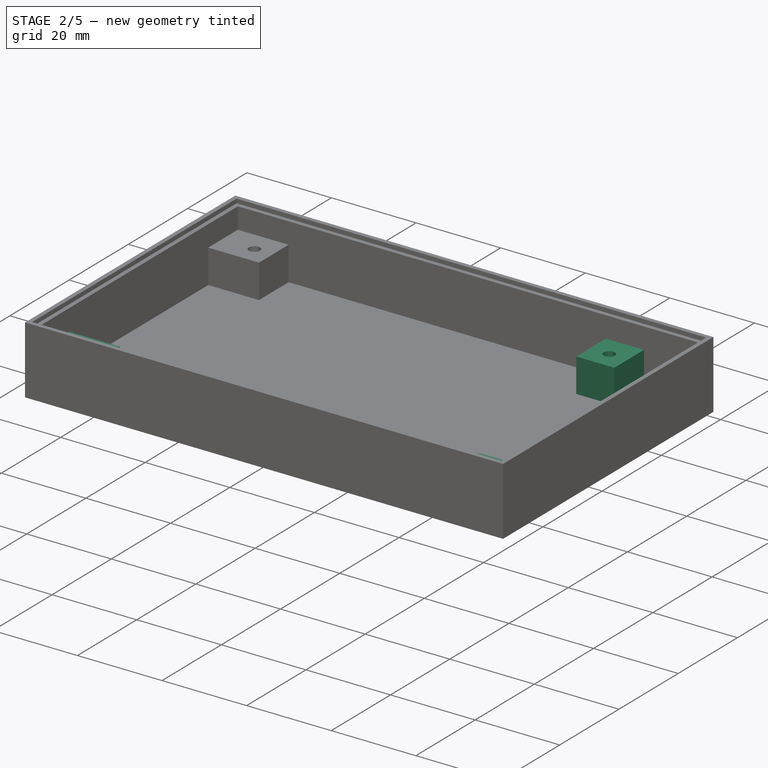
[diagram: stage 2 of 5 — iso view after this stage's code; geometry added in this stage tinted green]
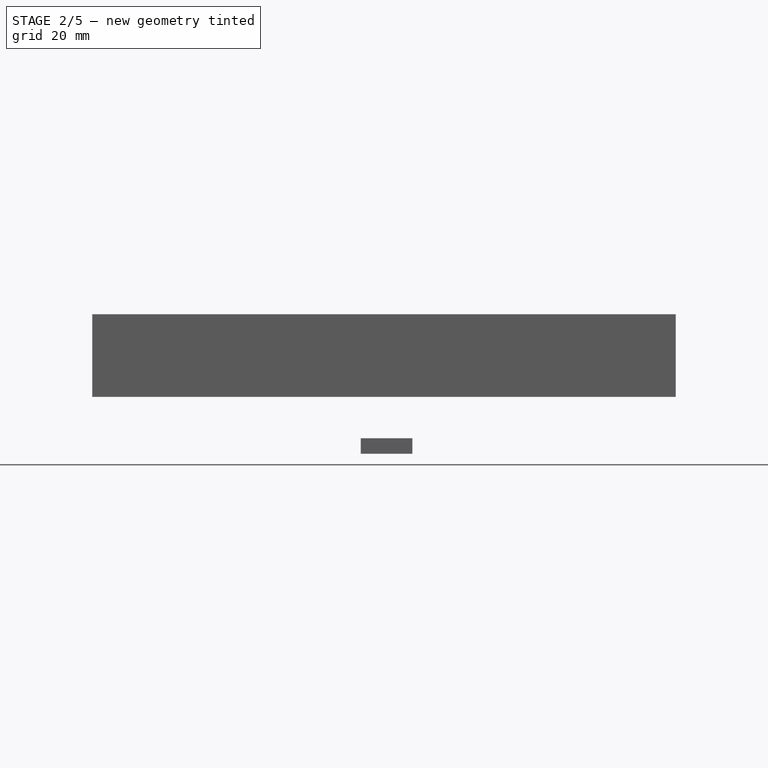
[diagram: stage 2 of 5 — front view after this stage's code; geometry added in this stage tinted green]
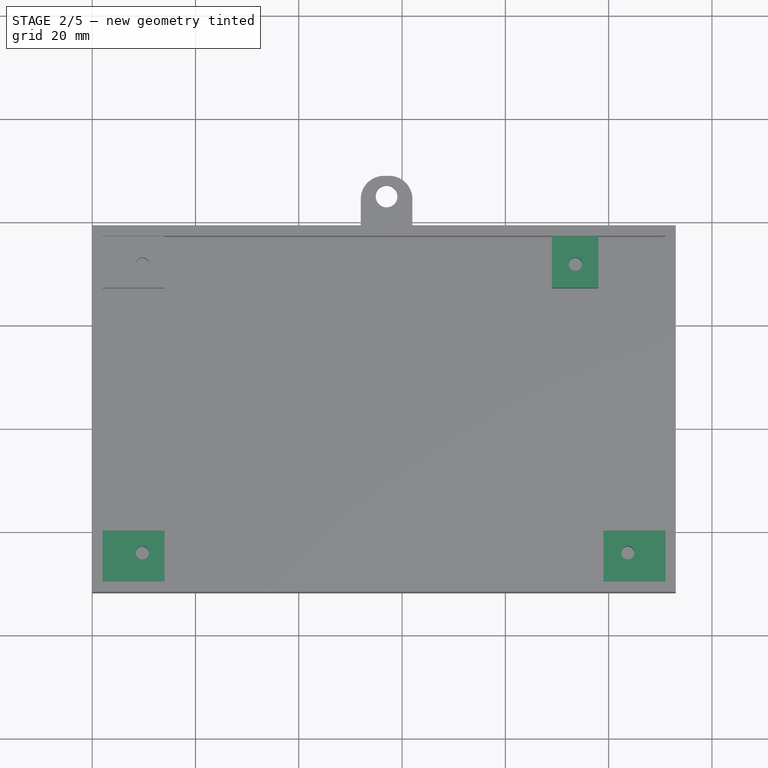
[diagram: stage 2 of 5 — top view after this stage's code; geometry added in this stage tinted green]
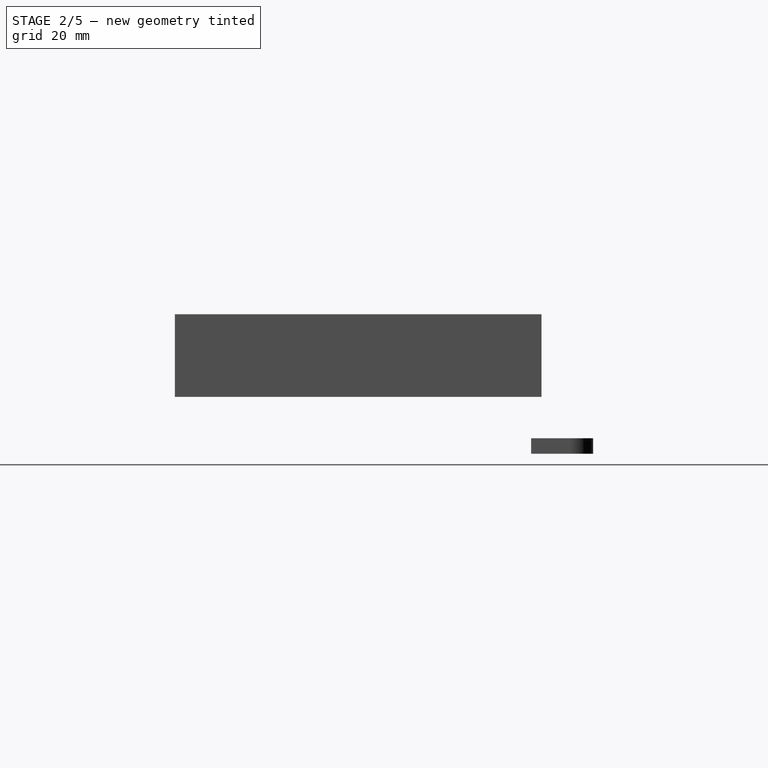
[diagram: stage 2 of 5 — right view after this stage's code; geometry added in this stage tinted green]
FEATURE [Part::MultiFuse] Fusion  label="CaseBottomRaw"
  Shapes = -> [Cut,Cut001]
FEATURE [Part::Box] Box013  label="FasteningHolder_LU"
  AttacherType = Attacher::AttachEngine3D
  Height = 8
  Length = 12
  Placement = pos=(2,-70,-10) rot=(0,0,1;0rad)
  Width = 10
FEATURE [Part::Box] Box015  label="FasteningHolder_RU"
  AttacherType = Attacher::AttachEngine3D
  Height = 8
  Length = 12
  Placement = pos=(99,-70,-10) rot=(0,0,1;0rad)
  Width = 10
FEATURE [Part::Box] Box016  label="FasteningHolder_RO"
  AttacherType = Attacher::AttachEngine3D
  Height = 8
  Length = 9
  Placement = pos=(89,-13,-10) rot=(0,0,1;0rad)
  Width = 10
FEATURE [Part::Cylinder] Cylinder001  label="FasteningHole_LU"
  Angle = 360
  AttacherType = Attacher::AttachEngine3D
  FirstAngle = 0
  Height = 8
  Placement = pos=(9.7,-64.3,-10) rot=(0,0,1;0rad)
  Radius = 1.3
  SecondAngle = 0
FEATURE [Part::Cylinder] Cylinder002  label="FasteningHole_RO"
  Angle = 360
  AttacherType = Attacher::AttachEngine3D
  FirstAngle = 0
  Height = 8
  Placement = pos=(93.55,-8.4,-10) rot=(0,0,1;0rad)
  Radius = 1.3
  SecondAngle = 0
FEATURE [Part::Cylinder] Cylinder003  label="FasteningHole_RU"
  Angle = 360
  AttacherType = Attacher::AttachEngine3D
  FirstAngle = 0
  Height = 8
  Placement = pos=(103.7,-64.3,-10) rot=(0,0,1;0rad)
  Radius = 1.3
  SecondAngle = 0
FEATURE [Part::Cut] Cut010  label="FasteningBlock_LU"
  Base = -> Box013
  Tool = -> Cylinder001
FEATURE [Part::Cut] Cut011  label="FasteningBlock_RO"
  Base = -> Box016
  Tool = -> Cylinder002
FEATURE [Part::Cut] Cut012  label="FasteningBlock_RU"
  Base = -> Box015
  Tool = -> Cylinder003
FEATURE [Part::MultiFuse] Fusion002  label="Fastening_LO"
  Shapes = -> [Fusion,Cut009]
FEATURE [Part::MultiFuse] Fusion003  label="Fastening_LU"
  Shapes = -> [Fusion002,Cut010]
FEATURE [Part::MultiFuse] Fusion004  label="Fastening_RU"
  Shapes = -> [Fusion003,Cut012]
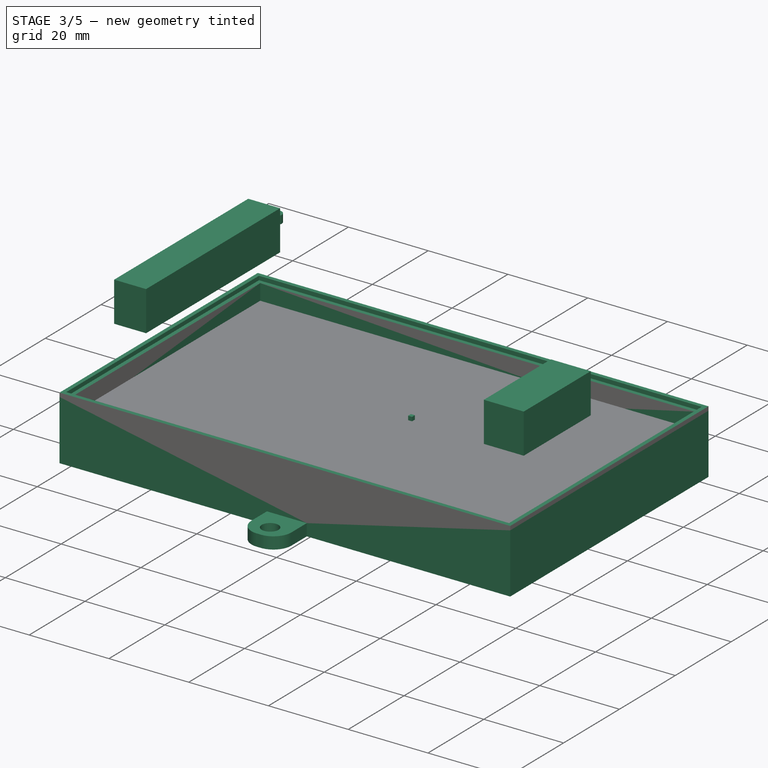
[diagram: stage 3 of 5 — iso view after this stage's code; geometry added in this stage tinted green]
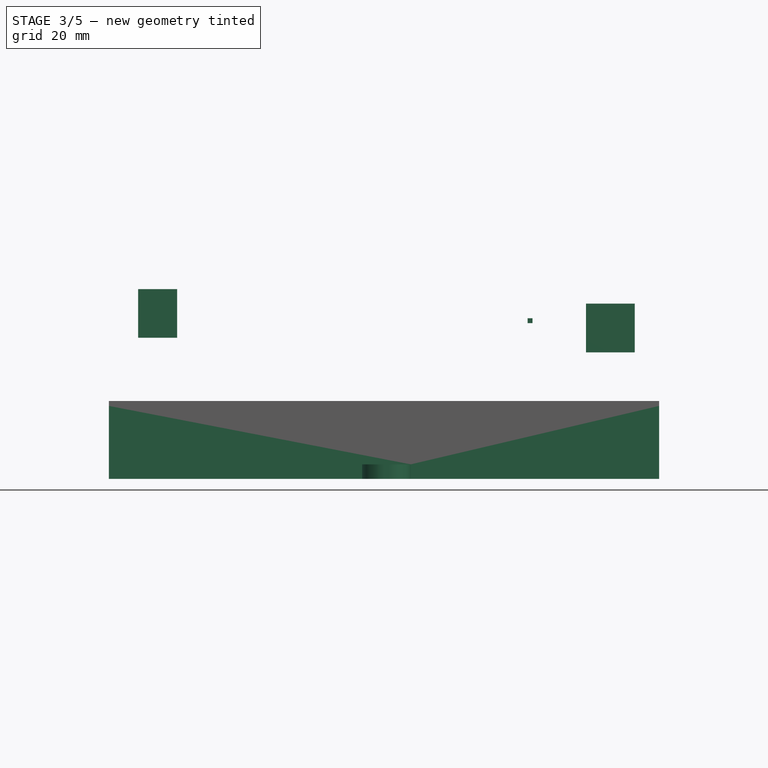
[diagram: stage 3 of 5 — front view after this stage's code; geometry added in this stage tinted green]
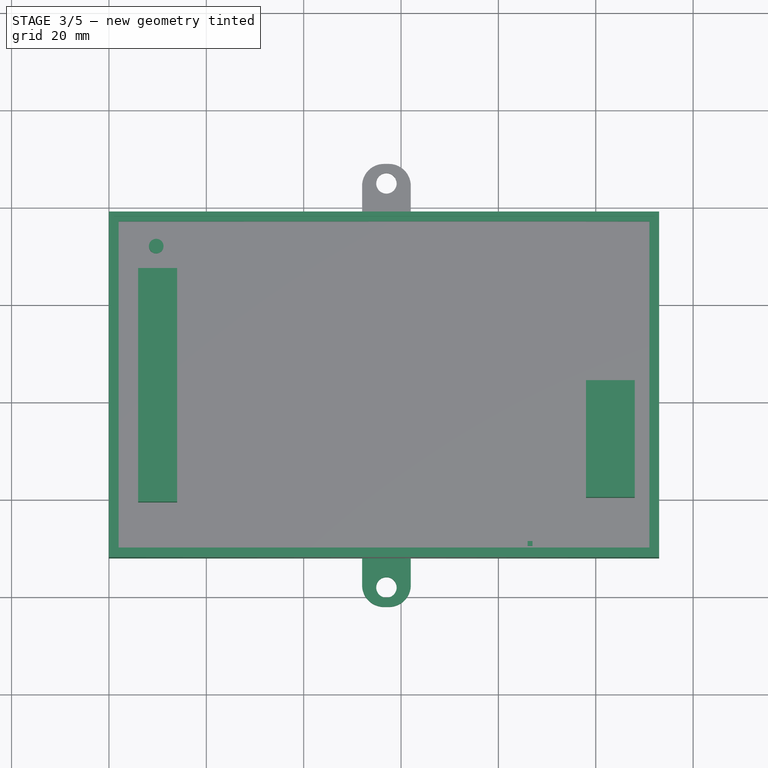
[diagram: stage 3 of 5 — top view after this stage's code; geometry added in this stage tinted green]
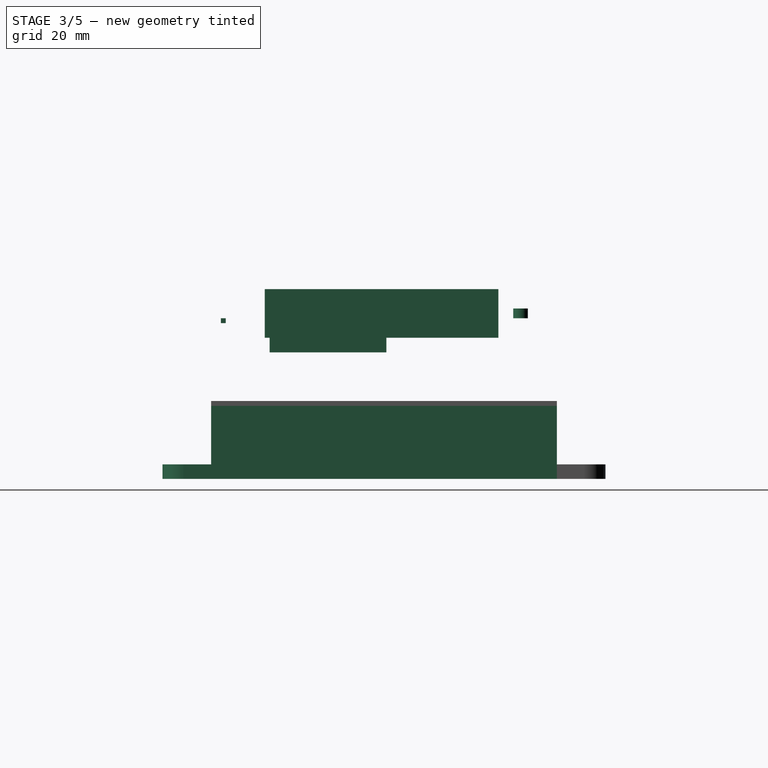
[diagram: stage 3 of 5 — right view after this stage's code; geometry added in this stage tinted green]
FEATURE [Part::Box] Box006  label="CaseTopLip_Out"
  AttacherType = Attacher::AttachEngine3D
  Height = 1
  Length = 111
  Placement = pos=(1,-71,-13) rot=(-0.707107,0,0.707107;0rad)
  Width = 69
FEATURE [Part::Box] Box007  label="CaseBottomLip_In001"
  AttacherType = Attacher::AttachEngine3D
  Height = 1
  Length = 109
  Placement = pos=(2,-70,-13) rot=(0,0,1;0rad)
  Width = 67
FEATURE [Part::Box] Box008  label="Molex17_Cut_1"
  AttacherType = Attacher::AttachEngine3D
  Height = 10
  Length = 8
  Placement = pos=(6,-61,6) rot=(0,0,1;0rad)
  Width = 48
FEATURE [Part::Box] Box010  label="Molex8_Cut"
  AttacherType = Attacher::AttachEngine3D
  Height = 10
  Length = 10
  Placement = pos=(98,-60,3) rot=(0,0,1;0rad)
  Width = 24
FEATURE [Part::MultiFuse] Fusion005  label="Fastening_RO"
  Placement = pos=(0,0,-11) rot=(0,0,1;0rad)
  Shapes = -> [Fusion004,Cut011]
FEATURE [Part::Box] Box012  label="Supply_Cut"
  AttacherType = Attacher::AttachEngine3D
  Height = 1
  Length = 1
  Placement = pos=(86,-70,9) rot=(0,0,1;0rad)
  Width = 1
FEATURE [Part::Cylinder] Cylinder004  label="Hole_LO"
  Angle = 360
  AttacherType = Attacher::AttachEngine3D
  FirstAngle = 0
  Height = 2
  Placement = pos=(9.71,-8.44,10) rot=(0,0,1;0rad)
  Radius = 1.5
  SecondAngle = 0
FEATURE [Part::Box] Box018  label="Würfel001"
  AttacherType = Attacher::AttachEngine3D
  Height = 3
  Length = 10
  Placement = pos=(0,-3,-23) rot=(0,0,1;0rad)
  Width = 12
FEATURE [Part::Cylinder] Cylinder009  label="Zylinder001"
  Angle = 360
  AttacherType = Attacher::AttachEngine3D
  FirstAngle = 0
  Height = 3
  Placement = pos=(5,5,-23) rot=(0,0,1;0rad)
  Radius = 2.1
  SecondAngle = 0
FEATURE [Part::Fillet] Fillet002
  Base = -> Box018
  Edges = 1 edges r=4.5: [Edge7]
FEATURE [Part::Fillet] Fillet003
  Base = -> Fillet002
  Edges = 1 edges r=4.5: [Edge15]
FEATURE [Part::Cut] Cut018  label="Ear_U"
  Base = -> Fillet003
  Placement = pos=(62,-73,0) rot=(0,0,1;3.14159rad)
  Tool = -> Cylinder009
FEATURE [Part::MultiFuse] Fusion010  label="Ear_1"
  Shapes = -> [Fusion005,Cut017]
FEATURE [Part::MultiFuse] Fusion011  label="CaseBottom"
  Shapes = -> [Fusion010,Cut018]
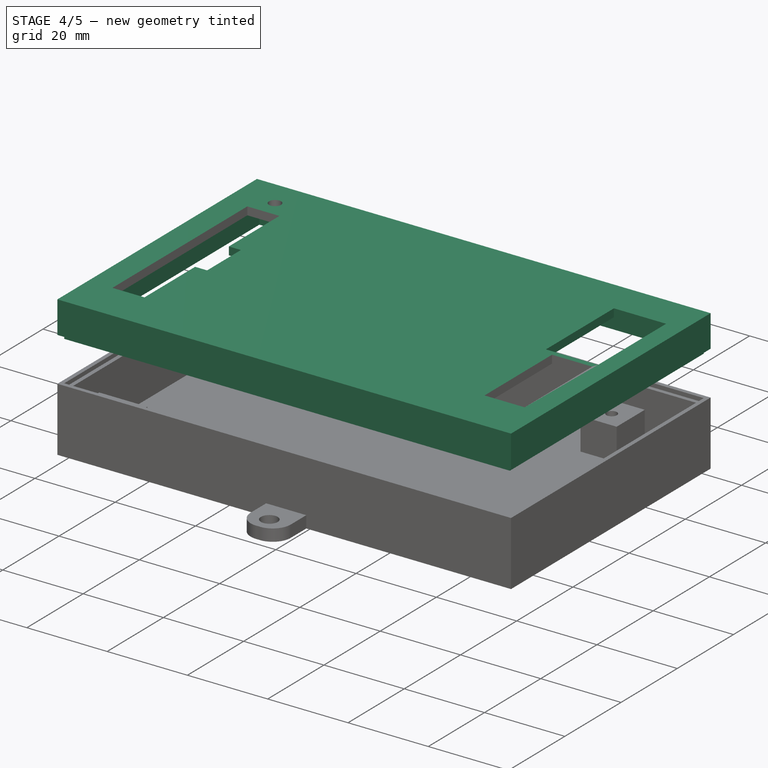
[diagram: stage 4 of 5 — iso view after this stage's code; geometry added in this stage tinted green]
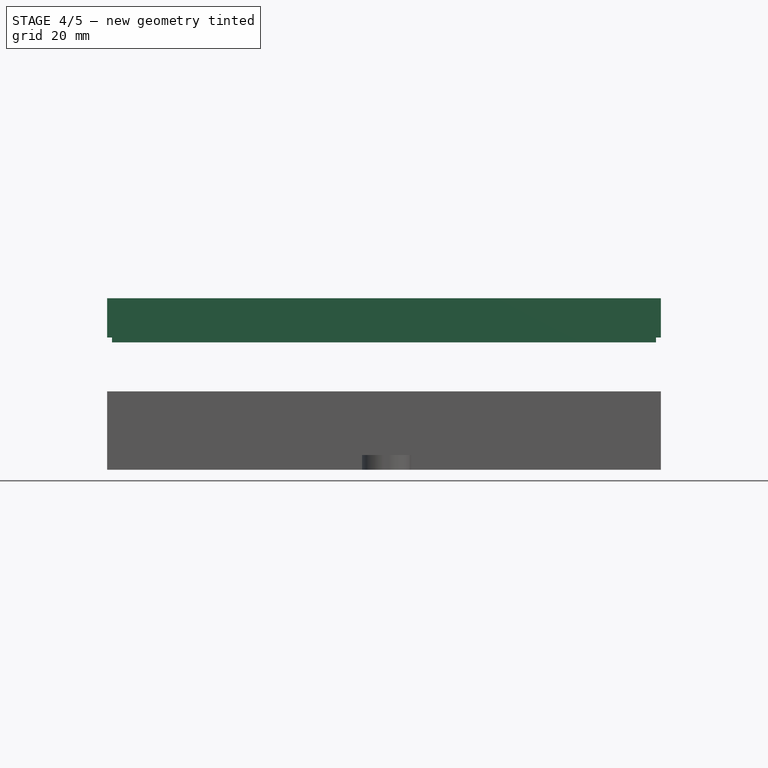
[diagram: stage 4 of 5 — front view after this stage's code; geometry added in this stage tinted green]
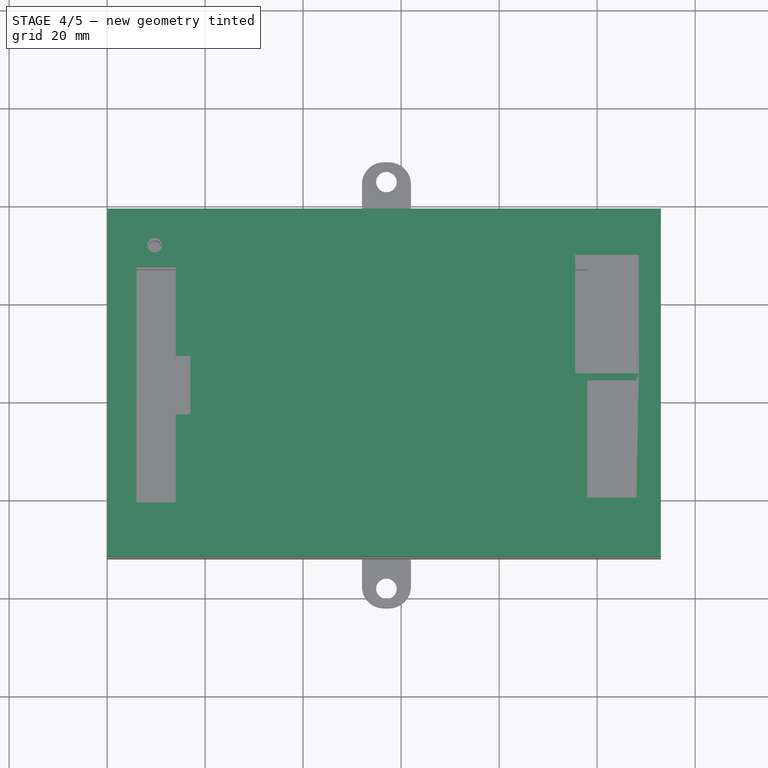
[diagram: stage 4 of 5 — top view after this stage's code; geometry added in this stage tinted green]
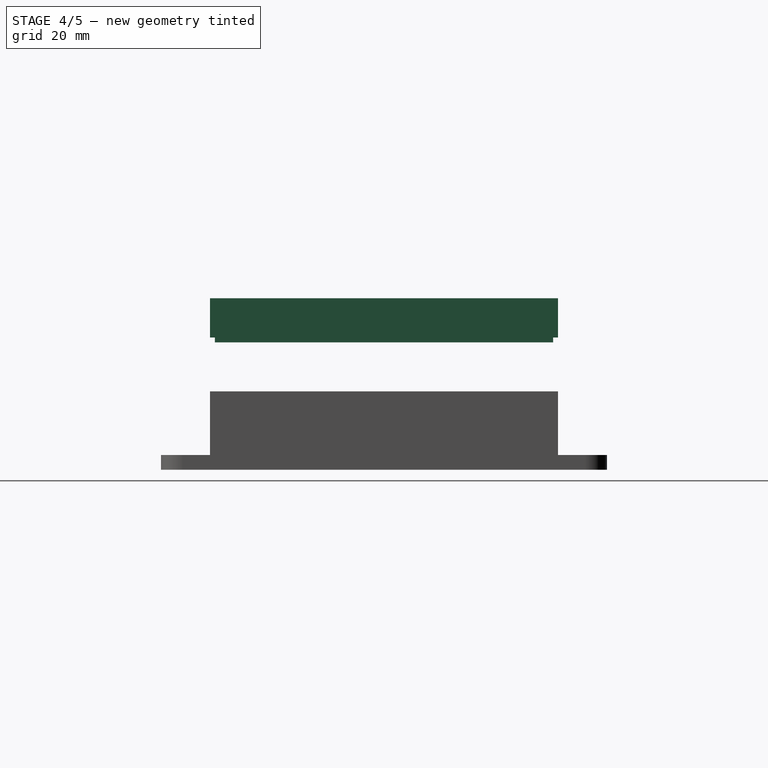
[diagram: stage 4 of 5 — right view after this stage's code; geometry added in this stage tinted green]
FEATURE [Part::Box] Box004  label="CaseTopBed_Out"
  AttacherType = Attacher::AttachEngine3D
  Height = 8
  Length = 113
  Placement = pos=(0,-72,-12) rot=(0,0,1;0rad)
  Width = 71
FEATURE [Part::Box] Box005  label="CaseTopBed_In"
  AttacherType = Attacher::AttachEngine3D
  Height = 6
  Length = 109
  Placement = pos=(2,-70,-12) rot=(0,0,1;0rad)
  Width = 67
FEATURE [Part::Cut] Cut002  label="CaseTopBed"
  Base = -> Box004
  Tool = -> Box005
FEATURE [Part::Cut] Cut003  label="CaseTopLip"
  Base = -> Box006
  Tool = -> Box007
FEATURE [Part::MultiFuse] Fusion001  label="CaseTopRaw"
  Placement = pos=(0,0,16) rot=(0,0,1;0rad)
  Shapes = -> [Cut002,Cut003]
FEATURE [Part::Box] Box009  label="Molex17_Cut_2"
  AttacherType = Attacher::AttachEngine3D
  Height = 10
  Length = 5
  Placement = pos=(12,-43,6) rot=(0,0,1;0rad)
  Width = 12
FEATURE [Part::Cut] Cut004  label="Molex17_1"
  Base = -> Fusion001
  Tool = -> Box008
FEATURE [Part::Cut] Cut005  label="Molex17_2"
  Base = -> Cut004
  Tool = -> Box009
FEATURE [Part::Box] Box011  label="Phoenix_Cut"
  AttacherType = Attacher::AttachEngine3D
  Height = 10
  Length = 13
  Placement = pos=(95.5,-34.6,3) rot=(0,0,1;0rad)
  Width = 24.2
FEATURE [Part::Cut] Cut006  label="Molex8"
  Base = -> Cut005
  Tool = -> Box010
FEATURE [Part::Cut] Cut007  label="Phoenix_Cut001"
  Base = -> Cut006
  Tool = -> Box011
FEATURE [Part::Cut] Cut008  label="Supply_Cut001"
  Base = -> Cut007
  Tool = -> Box012
FEATURE [Part::Cut] Cut013  label="Screw_LO"
  Base = -> Cut008
  Tool = -> Cylinder004
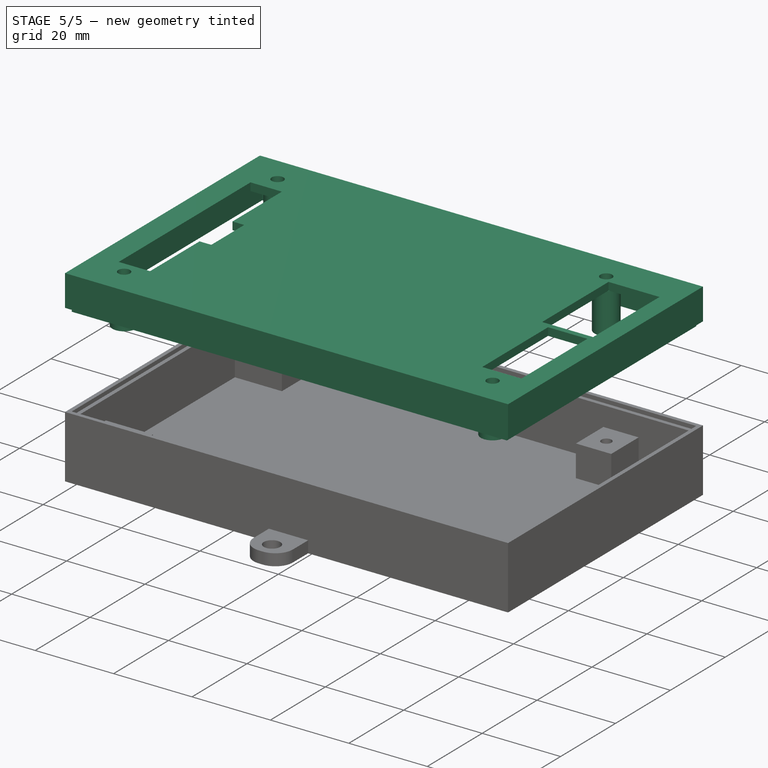
[diagram: stage 5 of 5 — iso view after this stage's code; geometry added in this stage tinted green]
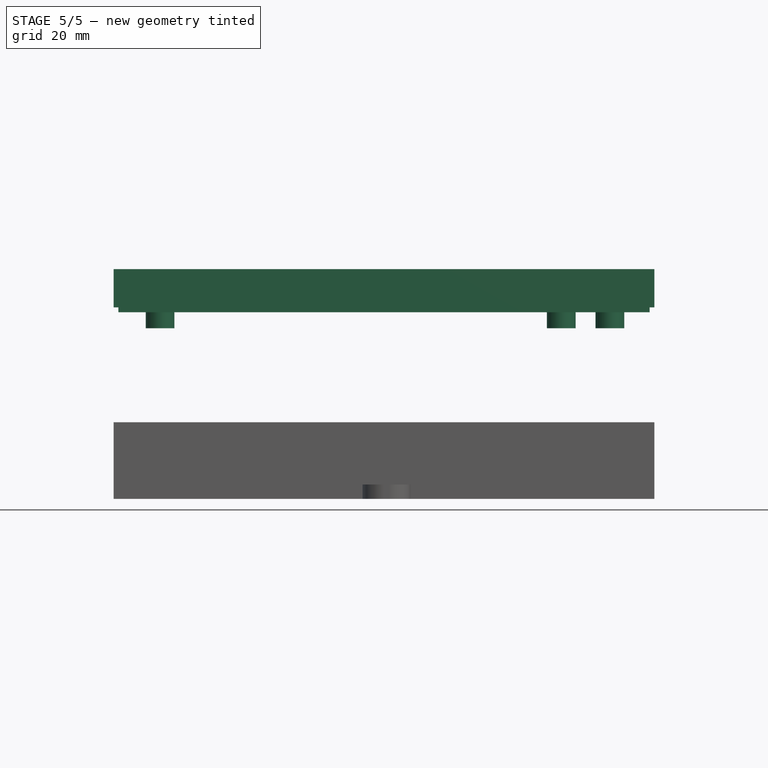
[diagram: stage 5 of 5 — front view after this stage's code; geometry added in this stage tinted green]
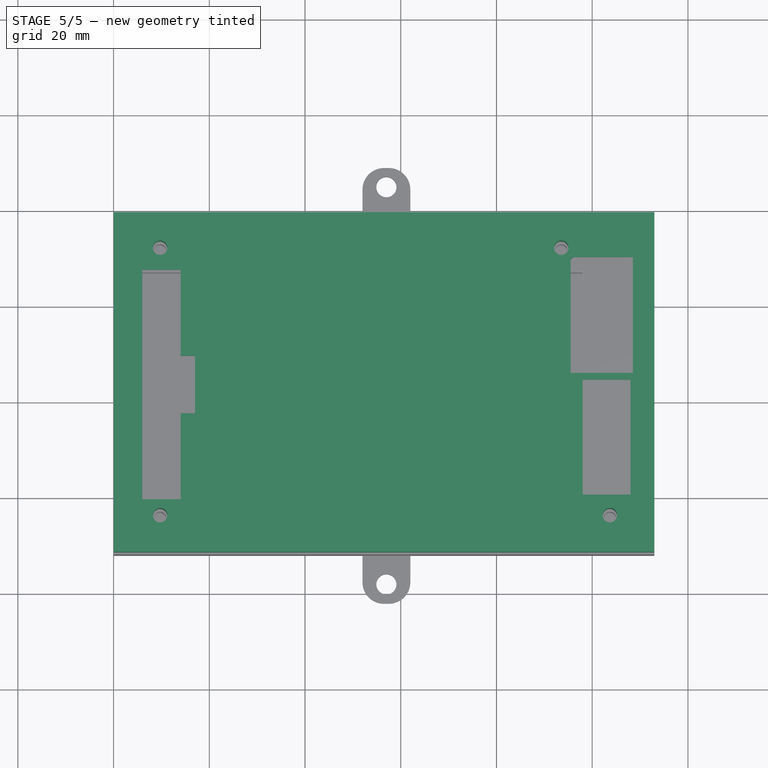
[diagram: stage 5 of 5 — top view after this stage's code; geometry added in this stage tinted green]
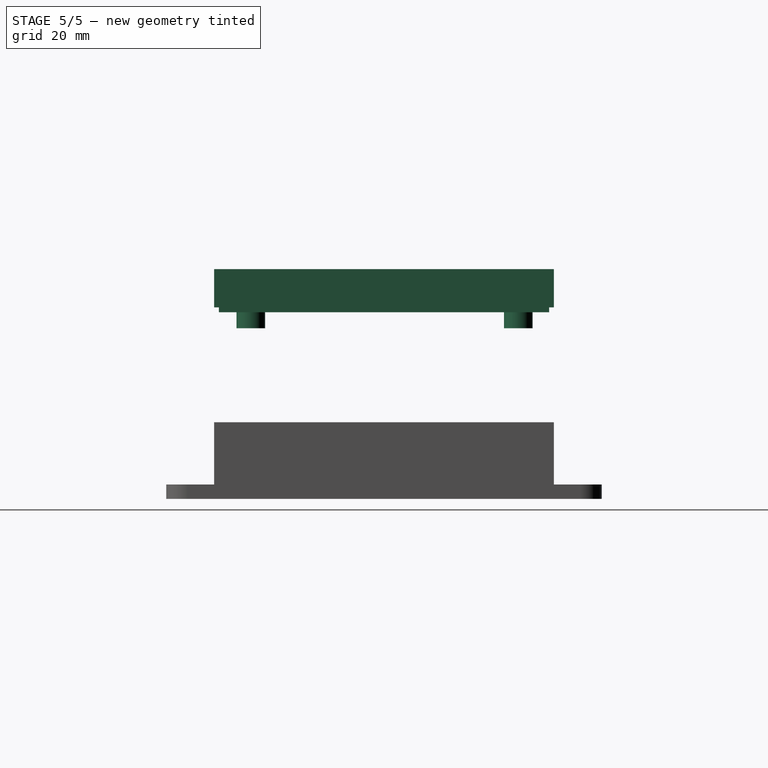
[diagram: stage 5 of 5 — right view after this stage's code; geometry added in this stage tinted green]
FEATURE [Part::FeaturePython] Tube  label="Pusher_LO"  # WARN: FeaturePython — macro-defined, semantics opaque (R4)
  AttacherType = Attacher::AttachEngine3D
  Height = 10.35
  InnerRadius = 1.5
  OuterRadius = 3
  Placement = pos=(9.71,-8.44,-0.35) rot=(0,0,1;0rad)
FEATURE [Part::FeaturePython] Tube001  label="Pusher_LU"  # WARN: FeaturePython — macro-defined, semantics opaque (R4)
  AttacherType = Attacher::AttachEngine3D
  Height = 10.35
  InnerRadius = 1.5
  OuterRadius = 3
  Placement = pos=(9.71,-64.33,-0.35) rot=(0,0,1;0rad)
FEATURE [Part::FeaturePython] Tube002  label="Pusher_RO"  # WARN: FeaturePython — macro-defined, semantics opaque (R4)
  AttacherType = Attacher::AttachEngine3D
  Height = 10.35
  InnerRadius = 1.5
  OuterRadius = 3
  Placement = pos=(93.54,-8.44,-0.35) rot=(0,0,1;0rad)
FEATURE [Part::FeaturePython] Tube004  label="Pusher_RU"  # WARN: FeaturePython — macro-defined, semantics opaque (R4)
  AttacherType = Attacher::AttachEngine3D
  Height = 10.35
  InnerRadius = 1.5
  OuterRadius = 3
  Placement = pos=(103.69,-64.33,-0.35) rot=(0,0,1;0rad)
FEATURE [Part::Cylinder] Cylinder005  label="Hole_LU"
  Angle = 360
  AttacherType = Attacher::AttachEngine3D
  FirstAngle = 0
  Height = 2
  Placement = pos=(9.71,-64.33,10) rot=(0,0,1;0rad)
  Radius = 1.5
  SecondAngle = 0
FEATURE [Part::Cylinder] Cylinder006  label="Hole_RO"
  Angle = 360
  AttacherType = Attacher::AttachEngine3D
  FirstAngle = 0
  Height = 2
  Placement = pos=(93.54,-8.44,10) rot=(0,0,1;0rad)
  Radius = 1.5
  SecondAngle = 0
FEATURE [Part::Cylinder] Cylinder007  label="Hole_RU"
  Angle = 360
  AttacherType = Attacher::AttachEngine3D
  FirstAngle = 0
  Height = 2
  Placement = pos=(103.69,-64.33,10) rot=(0,0,1;0rad)
  Radius = 1.5
  SecondAngle = 0
FEATURE [Part::Cut] Cut014  label="Screw_LU"
  Base = -> Cut013
  Tool = -> Cylinder005
FEATURE [Part::Cut] Cut015  label="Screw_RO"
  Base = -> Cut014
  Tool = -> Cylinder006
FEATURE [Part::Cut] Cut016  label="Screw_RU"
  Base = -> Cut015
  Tool = -> Cylinder007
FEATURE [Part::MultiFuse] Fusion006  label="ScreChn_LO"
  Shapes = -> [Cut016,Tube]
FEATURE [Part::MultiFuse] Fusion007  label="ScreChn_LU"
  Shapes = -> [Fusion006,Tube001]
FEATURE [Part::MultiFuse] Fusion008  label="ScreChn_RO"
  Shapes = -> [Fusion007,Tube002]
FEATURE [Part::MultiFuse] Fusion009  label="CaseTop"
  Placement = pos=(0,0,13) rot=(0,0,1;0rad)
  Shapes = -> [Fusion008,Tube004]
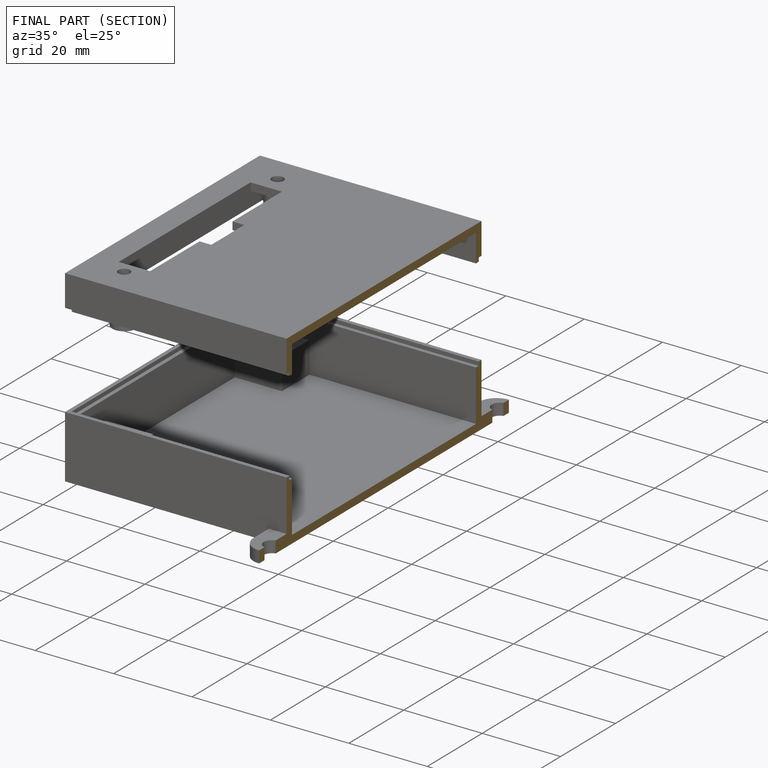
[diagram: finished part — half-section view (interior)]
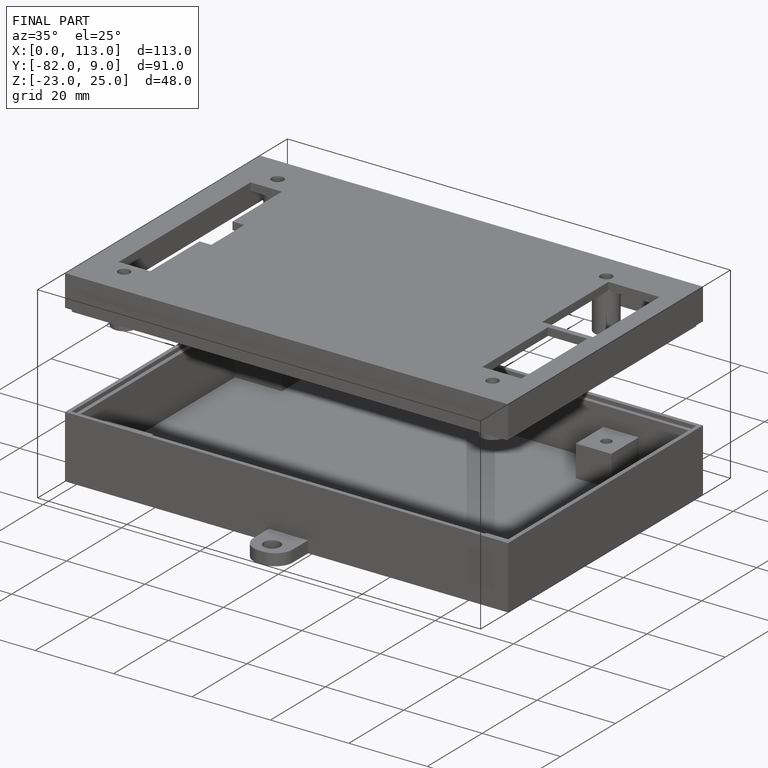
[diagram: finished part — iso view with bounding-box wireframe]
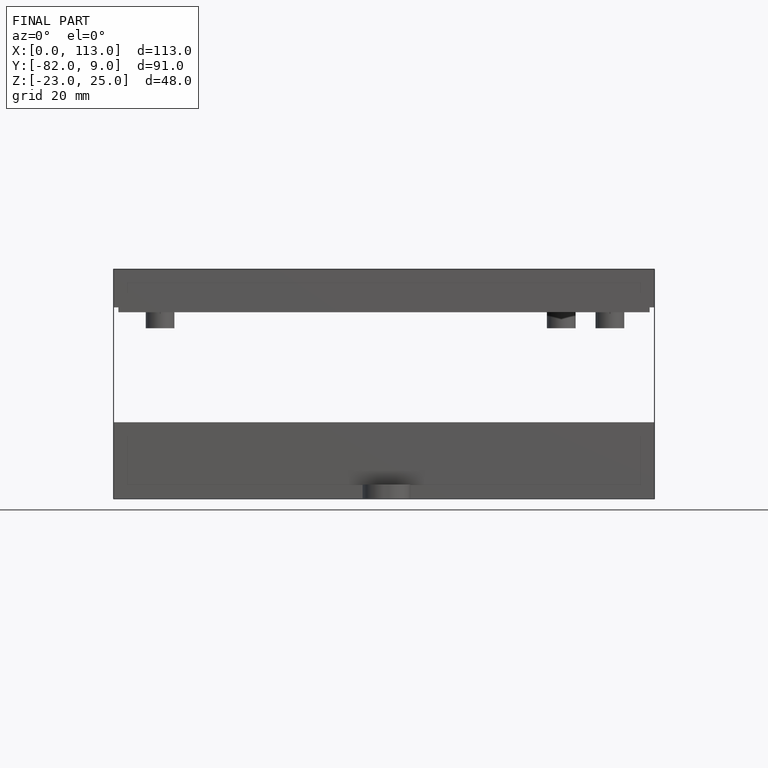
[diagram: finished part — front view with bounding-box wireframe]
